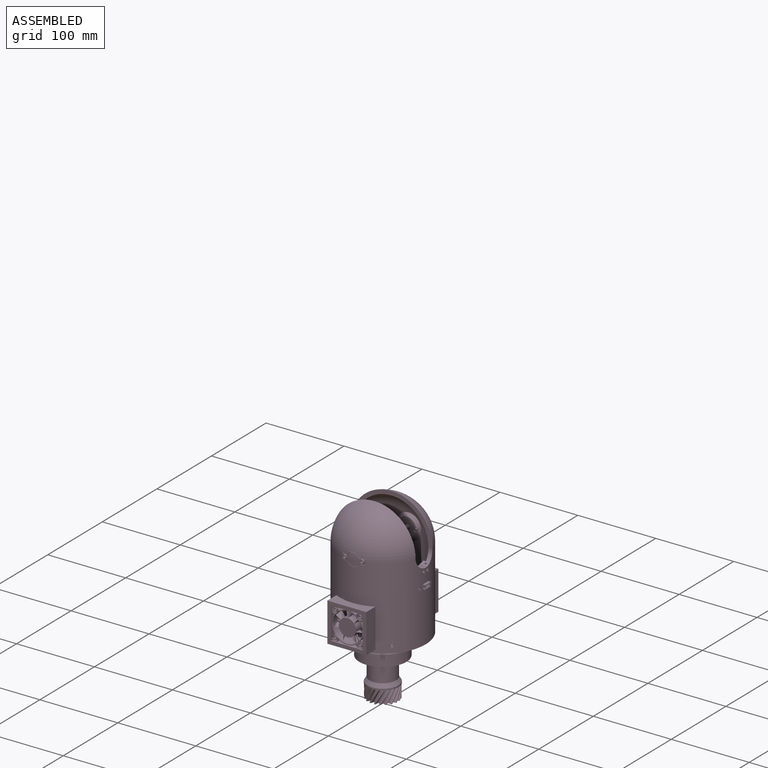
[diagram: assembled view]
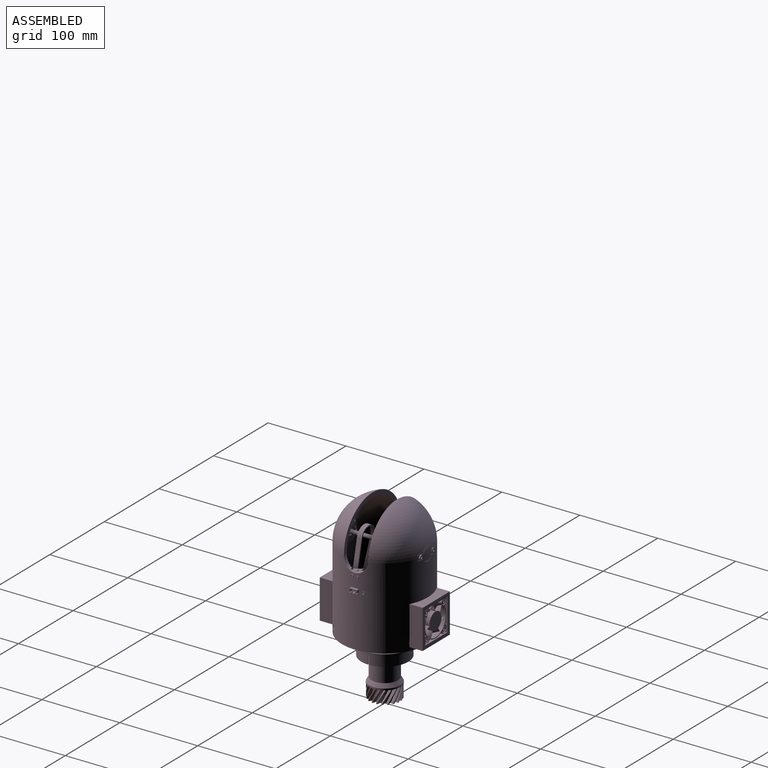
[diagram: assembled view, second angle]
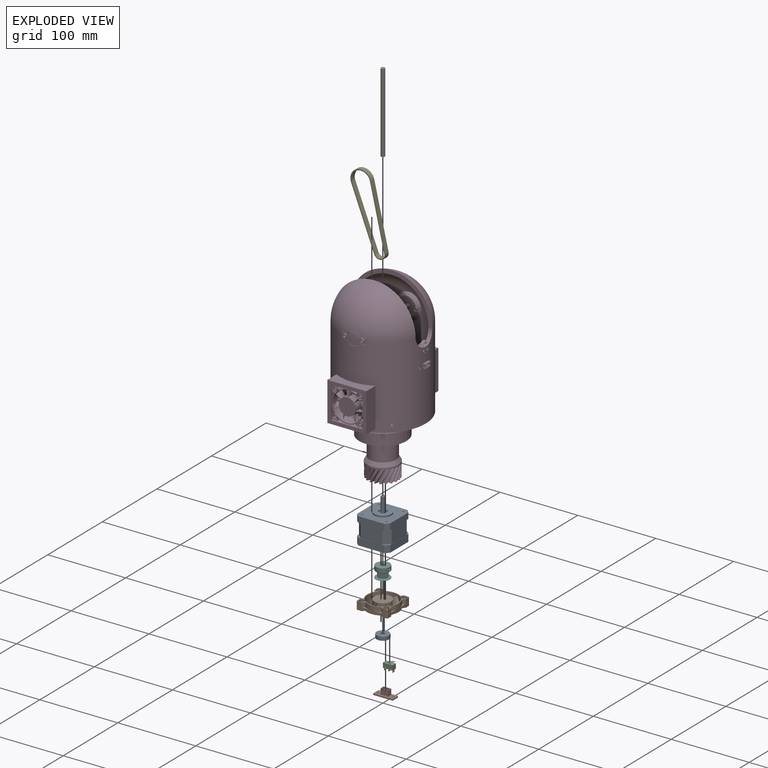
[diagram: exploded view]
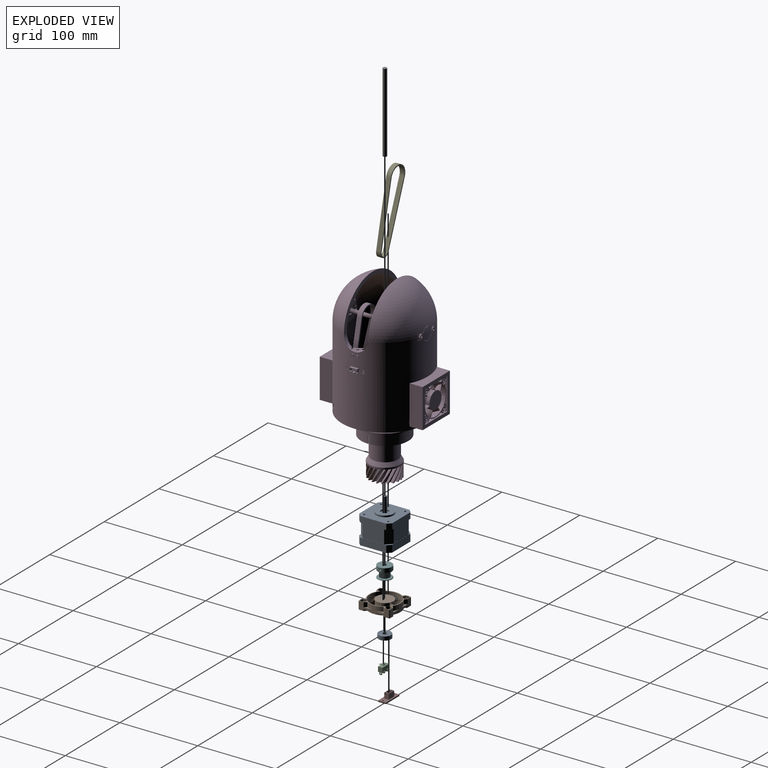
[diagram: exploded view, second angle]
FCSTD DOCUMENT  (FreeCAD 0.19R24276 (Git))
Label: AssemblyArt4
License: All rights reserved
LicenseURL: http://en.wikipedia.org/wiki/All_rights_reserved
objects: Part::FeaturePython×80, App::Link×25, PartDesign::CoordinateSystem×16, App::DocumentObjectGroup×9, App::Part×9, PartDesign::Line×8, Part::Feature×7, App::FeaturePython×1, Sketcher::SketchObject×1, PartDesign::Pad×1, Part::Cylinder×1
note: 115 computed B-rep shape members (.brp) not serialized (recipe doc carries the construction recipe, not evaluated geometry)
EXTERNAL_REF file=Art4TransmissionColumn.FCStd obj=LCS_Art4TransmissionColumn
EXTERNAL_REF file=Art4TransmissionColumn.FCStd obj=Body
EXTERNAL_REF file=Art4BodyBot.FCStd obj=LCS_Art4BodyBot
EXTERNAL_REF file=Art4TransmissionColumn.FCStd obj=LCS_Art4Body
EXTERNAL_REF file=Art4BodyBot.FCStd obj=Body
EXTERNAL_REF file=Art4Body.FCStd obj=LCS_Art4Body
EXTERNAL_REF file=Art4BodyBot.FCStd obj=LCS_Art4Body
EXTERNAL_REF file=Art4Body.FCStd obj=Body
EXTERNAL_REF file=Art4Body.FCStd obj=LCS_Fan2
EXTERNAL_REF file=Art4BodyFan.FCStd obj=LCS_Art4BodyFan
EXTERNAL_REF file=Art4BodyFan.FCStd obj=Body
EXTERNAL_REF file=Art4Body.FCStd obj=LCS_Fan1
EXTERNAL_REF file=Art4BodyBot.FCStd obj=LCS_Motor1A
EXTERNAL_REF file=Art56MotorHolderA.FCStd obj=LCS_Art56MotorHolderA
EXTERNAL_REF file=Art56MotorHolderA.FCStd obj=Body
EXTERNAL_REF file=Art4BodyBot.FCStd obj=LCS_Motor2A
EXTERNAL_REF file=Art56MotorHolderA.FCStd obj=LCS_Motor
EXTERNAL_REF file=Art56MotorHolderB.FCStd obj=LCS_AMotor
EXTERNAL_REF file=Art56MotorHolderB.FCStd obj=Body
EXTERNAL_REF file=Art4Body.FCStd obj=LCS_Bearing1
EXTERNAL_REF file=Art4Body.FCStd obj=LCS_Bearing2
EXTERNAL_REF file=Art4BearingFix.FCStd obj=LCS_Art4BearingFix
EXTERNAL_REF file=Art4Body.FCStd obj=LCS_BearingFix1
EXTERNAL_REF file=Art4BearingFix.FCStd obj=Body
EXTERNAL_REF file=Art4Body.FCStd obj=LCS_BearingFix2
EXTERNAL_REF file=Art4Body.FCStd obj=LCS_Connector
EXTERNAL_REF file=Art4Optodisk.FCStd obj=LCS_Art4Optodisk
EXTERNAL_REF file=Art4TransmissionColumn.FCStd obj=LCS_OptoRing
EXTERNAL_REF file=Art4Optodisk.FCStd obj=Body
EXTERNAL_REF file=Art4TransmissionColumn.FCStd obj=HoleAxis_8
EXTERNAL_REF file=Art4TransmissionColumn.FCStd obj=HoleAxis_7
EXTERNAL_REF file=Art4TransmissionColumn.FCStd obj=HoleAxis_6
EXTERNAL_REF file=Art4TransmissionColumn.FCStd obj=HoleAxis_5
EXTERNAL_REF file=Art4BodyBot.FCStd obj=HoleAxis_2
EXTERNAL_REF file=Art4BodyBot.FCStd obj=HoleAxis_3
EXTERNAL_REF file=Art4BodyBot.FCStd obj=HoleAxis_4
EXTERNAL_REF file=Art4BodyBot.FCStd obj=HoleAxis_1
EXTERNAL_REF file=Art4BodyBot.FCStd obj=HoleAxis_7
EXTERNAL_REF file=Art4BodyBot.FCStd obj=HoleAxis_5
EXTERNAL_REF file=Art4BodyBot.FCStd obj=HoleAxis_6
EXTERNAL_REF file=Art4BodyBot.FCStd obj=HoleAxis_8
EXTERNAL_REF file=Art4Body.FCStd obj=HoleAxis_2
EXTERNAL_REF file=Art4Body.FCStd obj=HoleAxis_4
EXTERNAL_REF file=Art4Body.FCStd obj=HoleAxis_3
EXTERNAL_REF file=Art4Body.FCStd obj=HoleAxis_1
EXTERNAL_REF file=Art4Body.FCStd obj=HoleAxis_6
EXTERNAL_REF file=Art4Body.FCStd obj=HoleAxis_5
EXTERNAL_REF file=Art4Body.FCStd obj=HoleAxis_7
EXTERNAL_REF file=Art4Body.FCStd obj=HoleAxis_8
EXTERNAL_REF file=Art4Body.FCStd obj=HoleAxis_19
EXTERNAL_REF file=Art4Body.FCStd obj=HoleAxis_20
EXTERNAL_REF file=Art4Body.FCStd obj=HoleAxis_18
EXTERNAL_REF file=Art4Body.FCStd obj=HoleAxis_17
EXTERNAL_REF file=Art56MotorHolderB.FCStd obj=HoleAxis_5
EXTERNAL_REF file=Art56MotorHolderA.FCStd obj=HoleAxis_5
EXTERNAL_REF file=Art4Body.FCStd obj=LCS_MicroSwitch
EXTERNAL_REF file=Art4TransmissionColumn.FCStd obj=HoleAxis_2
EXTERNAL_REF file=Art4TransmissionColumn.FCStd obj=HoleAxis_1
EXTERNAL_REF file=Art4TransmissionColumn.FCStd obj=HoleAxis_4
EXTERNAL_REF file=Art4TransmissionColumn.FCStd obj=HoleAxis_3
EXTERNAL_REF file=Art4Optodisk.FCStd obj=HoleAxis_3
EXTERNAL_REF file=Art4Optodisk.FCStd obj=HoleAxis_2
EXTERNAL_REF file=Art4Optodisk.FCStd obj=HoleAxis_1
EXTERNAL_REF file=Art4Optodisk.FCStd obj=HoleAxis_4
EXTERNAL_REF file=Art4BodyBot.FCStd obj=HoleAxis_11
EXTERNAL_REF file=Art4BodyBot.FCStd obj=HoleAxis_12
EXTERNAL_REF file=Art4BodyBot.FCStd obj=HoleAxis_10
EXTERNAL_REF file=Art4BodyBot.FCStd obj=HoleAxis_9
EXTERNAL_REF file=Art4Body.FCStd obj=HoleAxis_11
EXTERNAL_REF file=Art4Body.FCStd obj=HoleAxis_12
EXTERNAL_REF file=Art4Body.FCStd obj=HoleAxis_10
EXTERNAL_REF file=Art4Body.FCStd obj=HoleAxis_9
EXTERNAL_REF file=Art4Body.FCStd obj=HoleAxis_14
EXTERNAL_REF file=Art4Body.FCStd obj=HoleAxis_13
EXTERNAL_REF file=Art4Body.FCStd obj=HoleAxis_16
EXTERNAL_REF file=Art4Body.FCStd obj=HoleAxis_15
EXTERNAL_REF file=Art56MotorHolderB.FCStd obj=HoleAxis_3
EXTERNAL_REF file=Art56MotorHolderB.FCStd obj=HoleAxis_2
EXTERNAL_REF file=Art56MotorHolderB.FCStd obj=HoleAxis_1
EXTERNAL_REF file=Art56MotorHolderB.FCStd obj=HoleAxis_4
EXTERNAL_REF file=Art56MotorHolderA.FCStd obj=HoleAxis_2
EXTERNAL_REF file=Art56MotorHolderA.FCStd obj=HoleAxis_1
EXTERNAL_REF file=Art56MotorHolderA.FCStd obj=HoleAxis_3
EXTERNAL_REF file=Art56MotorHolderA.FCStd obj=HoleAxis_4
EXTERNAL_REF file=Art4BearingFix.FCStd obj=HoleAxis_2
EXTERNAL_REF file=Art4BearingFix.FCStd obj=HoleAxis_1

FEATURE [PartDesign::CoordinateSystem] LCS_Origin
  AttacherType = Attacher::AttachEngine3D
  MapMode = 2
  Support = -> [X_Axis]
FEATURE [App::DocumentObjectGroup] Constraints
FEATURE [App::FeaturePython] Variables  # WARN: FeaturePython — macro-defined, semantics opaque (R4)
FEATURE [App::Link] Art4TransmissionColumn_Art4TransmissionColumn
  AssemblyType = Asm4EE
  AttachedBy = #LCS_Art4TransmissionColumn
  AttachedTo = Parent Assembly#LCS_Origin
  AttachmentOffset = pos=(0,0,0) rot=(0,0,1;0.785398rad)
  ElementCount = 0
  LinkPlacement = pos=(0,0,-69) rot=(0,0,1;0.785398rad)
  LinkTransform = false
  Placement = pos=(0,0,-69) rot=(0,0,1;0.785398rad)
  Scale = 1
  ScaleVector = (1,1,1)
  ShowElement = true
  expr: Placement = LCS_Origin.Placement * AttachmentOffset * Art4TransmissionColumn#LCS_Art4TransmissionColumn.Placement ^ -1
FEATURE [App::Link] Art4BodyBot_Art4BodyBot
  AssemblyType = Asm4EE
  AttachedBy = #LCS_Art4BodyBot
  AttachedTo = Art4TransmissionColumn_Art4TransmissionColumn#LCS_Art4Body
  AttachmentOffset = pos=(0,0,0) rot=(0,0,1;3.92699rad)
  ElementCount = 0
  LinkPlacement = pos=(-4e-15,1.24e-14,7) rot=(0,0,1;4.71239rad)
  LinkTransform = false
  Placement = pos=(-4e-15,1.24e-14,7) rot=(0,0,1;4.71239rad)
  Scale = 1
  ScaleVector = (1,1,1)
  ShowElement = true
  expr: Placement = Art4TransmissionColumn_Art4TransmissionColumn.Placement * Art4TransmissionColumn#LCS_Art4Body.Placement * AttachmentOffset * Art4BodyBot#LCS_Art4BodyBot.Placement ^ -1
FEATURE [App::Link] Art4Body_Art4Body
  AssemblyType = Asm4EE
  AttachedBy = #LCS_Art4Body
  AttachedTo = Art4BodyBot_Art4BodyBot#LCS_Art4Body
  ElementCount = 0
  LinkPlacement = pos=(3.9e-15,1.18e-14,11.5) rot=(0,0,1;4.71239rad)
  LinkTransform = false
  Placement = pos=(3.9e-15,1.18e-14,11.5) rot=(0,0,1;4.71239rad)
  Scale = 1
  ScaleVector = (1,1,1)
  ShowElement = true
  expr: Placement = Art4BodyBot_Art4BodyBot.Placement * Art4BodyBot#LCS_Art4Body.Placement * AttachmentOffset * Art4Body#LCS_Art4Body.Placement ^ -1
FEATURE [App::Link] Art4BodyFan_Art4BodyFan
  AssemblyType = Asm4EE
  AttachedBy = #LCS_Art4BodyFan
  AttachedTo = Art4Body_Art4Body#LCS_Fan2
  AttachmentOffset = pos=(0,0,4) rot=(0,1,0;3.14159rad)
  ElementCount = 0
  LinkPlacement = pos=(1.76e-14,-66,11.5) rot=(0,0,-1;4.71239rad)
  LinkTransform = false
  Placement = pos=(1.76e-14,-66,11.5) rot=(0,0,-1;4.71239rad)
  Scale = 1
  ScaleVector = (1,1,1)
  ShowElement = true
  expr: Placement = Art4Body_Art4Body.Placement * Art4Body#LCS_Fan2.Placement * AttachmentOffset * Art4BodyFan#LCS_Art4BodyFan.Placement ^ -1
FEATURE [App::Link] Art4BodyFan_Art4BodyFan001
  AssemblyType = Asm4EE
  AttachedBy = #LCS_Art4BodyFan
  AttachedTo = Art4Body_Art4Body#LCS_Fan1
  AttachmentOffset = pos=(0,0,-4) rot=(0,0,1;0rad)
  ElementCount = 0
  LinkPlacement = pos=(9.7e-15,66,11.5) rot=(0,0,1;4.71239rad)
  LinkTransform = false
  Placement = pos=(9.7e-15,66,11.5) rot=(0,0,1;4.71239rad)
  Scale = 1
  ScaleVector = (1,1,1)
  ShowElement = true
  expr: Placement = Art4Body_Art4Body.Placement * Art4Body#LCS_Fan1.Placement * AttachmentOffset * Art4BodyFan#LCS_Art4BodyFan.Placement ^ -1
FEATURE [App::Link] Art56MotorHolderA_Art56MotorHolderA
  AssemblyType = Asm4EE
  AttachedBy = #LCS_Art56MotorHolderA
  AttachedTo = Art4BodyBot_Art4BodyBot#LCS_Motor1A
  AttachmentOffset = pos=(0,0,11.1) rot=(0,0,1;1.5708rad)
  ElementCount = 0
  LinkPlacement = pos=(24,-10.3,33.6) rot=(0,-0.707107,0.707107;3.14159rad)
  LinkTransform = false
  Placement = pos=(24,-10.3,33.6) rot=(0,-0.707107,0.707107;3.14159rad)
  Scale = 1
  ScaleVector = (1,1,1)
  ShowElement = true
  expr: Placement = Art4BodyBot_Art4BodyBot.Placement * Art4BodyBot#LCS_Motor1A.Placement * AttachmentOffset * Art56MotorHolderA#LCS_Art56MotorHolderA.Placement ^ -1
FEATURE [App::Link] Art56MotorHolderA_Art56MotorHolderA001
  AssemblyType = Asm4EE
  AttachedBy = #LCS_Art56MotorHolderA
  AttachedTo = Art4BodyBot_Art4BodyBot#LCS_Motor2A
  AttachmentOffset = pos=(0,0,11.1) rot=(0,0,1;4.71239rad)
  ElementCount = 0
  LinkPlacement = pos=(-24,10.3,33.6) rot=(1,0,0;4.71239rad)
  LinkTransform = false
  Placement = pos=(-24,10.3,33.6) rot=(1,0,0;4.71239rad)
  Scale = 1
  ScaleVector = (1,1,1)
  ShowElement = true
  expr: Placement = Art4BodyBot_Art4BodyBot.Placement * Art4BodyBot#LCS_Motor2A.Placement * AttachmentOffset * Art56MotorHolderA#LCS_Art56MotorHolderA.Placement ^ -1
FEATURE [Part::Feature] Chamfer_solid  label="NEMA-17_Stepper_Motor_34mm"
FEATURE [PartDesign::CoordinateSystem] LCS_Front
  AttacherType = Attacher::AttachEngine3D
  MapMode = 45
  Placement = pos=(7.4e-15,0,34) rot=(0,0,1;0rad)
  Support = -> [Chamfer_solid]
FEATURE [PartDesign::CoordinateSystem] LCS_Back
  AttacherType = Attacher::AttachEngine3D
  MapMode = 45
  Placement = pos=(7.5e-15,0,0) rot=(0,0,1;0rad)
  Support = -> [Chamfer_solid]
FEATURE [PartDesign::CoordinateSystem] LCS_Shaft
  AttacherType = Attacher::AttachEngine3D
  MapMode = 11
  Placement = pos=(0,0,54) rot=(0,0,-1;0.927295rad)
  Support = -> [Chamfer_solid]
FEATURE [App::Part] Stepper_Nema17x34
  Group = -> [Chamfer_solid,LCS_Front,LCS_Back,LCS_Shaft]
  Origin = -> Origin011
FEATURE [Part::Feature] Part__Feature001  label="fan-40x40mm"
FEATURE [PartDesign::Line] HoleAxis_8
  AttacherType = Attacher::AttachEngineLine
  Length = 6.05899
  MapMode = 19
  Placement = pos=(-15.9948,15.9948,6.76) rot=(0,0,1;0rad)
  ResizeMode = 1
  Support = -> [Part__Feature001]
FEATURE [PartDesign::Line] HoleAxis_6
  AttacherType = Attacher::AttachEngineLine
  Length = 6.05899
  MapMode = 19
  Placement = pos=(15.9948,-15.9948,6.76) rot=(0,0,1;3.14159rad)
  ResizeMode = 1
  Support = -> [Part__Feature001]
FEATURE [PartDesign::Line] HoleAxis_7
  AttacherType = Attacher::AttachEngineLine
  Length = 6.05899
  MapMode = 19
  Placement = pos=(-15.9948,-15.9948,6.76) rot=(0,0,1;1.5708rad)
  ResizeMode = 1
  Support = -> [Part__Feature001]
FEATURE [PartDesign::Line] HoleAxis_5
  AttacherType = Attacher::AttachEngineLine
  Length = 6.05899
  MapMode = 19
  Placement = pos=(15.9948,15.9948,6.76) rot=(0,0,1;4.71239rad)
  ResizeMode = 1
  Support = -> [Part__Feature001]
FEATURE [PartDesign::CoordinateSystem] LCS_0001
  AttacherType = Attacher::AttachEngine3D
  MapMode = 2
  Support = -> [X_Axis002]
FEATURE [PartDesign::CoordinateSystem] LCS_Fan001
  AttacherType = Attacher::AttachEngine3D
  AttachmentOffset = pos=(0,0,-2.21) rot=(0,0,1;0rad)
  MapMode = 45
  Placement = pos=(-5e-16,5e-16,-4e-16) rot=(0,0,1;0rad)
  Support = -> [Part__Feature001]
FEATURE [App::Part] Fan_40x40
  Group = -> [LCS_0001,Part__Feature001,LCS_Fan001,HoleAxis_5,HoleAxis_6,HoleAxis_7,HoleAxis_8]
  Origin = -> Origin002
FEATURE [App::DocumentObjectGroup] Group001  label="Fans"
  Group = -> [Fan_40x40]
FEATURE [Part::Feature] Compound001  label="Bearing 625ZZ"
FEATURE [PartDesign::CoordinateSystem] LCS_0
  AttacherType = Attacher::AttachEngine3D
  MapMode = 2
  Support = -> [X_Axis003]
FEATURE [App::Part] Bearing_625ZZ
  Group = -> [LCS_0,Compound001]
  Origin = -> Origin003
FEATURE [App::DocumentObjectGroup] Group002  label="Bearing"
  Group = -> [Bearing_625ZZ]
FEATURE [App::Link] Stepper_Nema17x34001
  AssemblyType = Asm4EE
  AttachedBy = #LCS_Front
  AttachedTo = Art56MotorHolderA_Art56MotorHolderA001#LCS_Motor
  ElementCount = 0
  LinkPlacement = pos=(-24,-23.7,33.6) rot=(1,0,0;4.71239rad)
  LinkTransform = false
  Placement = pos=(-24,-23.7,33.6) rot=(1,0,0;4.71239rad)
  Scale = 1
  ScaleVector = (1,1,1)
  ShowElement = true
  expr: Placement = Art56MotorHolderA_Art56MotorHolderA001.Placement * Art56MotorHolderA#LCS_Motor.Placement * AttachmentOffset * LCS_Front.Placement ^ -1
FEATURE [App::Link] Stepper_Nema17x34002
  AssemblyType = Asm4EE
  AttachedBy = #LCS_Front
  AttachedTo = Art56MotorHolderA_Art56MotorHolderA#LCS_Motor
  ElementCount = 0
  LinkPlacement = pos=(24,23.7,33.6) rot=(0,-0.707107,0.707107;3.14159rad)
  LinkTransform = false
  Placement = pos=(24,23.7,33.6) rot=(0,-0.707107,0.707107;3.14159rad)
  Scale = 1
  ScaleVector = (1,1,1)
  ShowElement = true
  expr: Placement = Art56MotorHolderA_Art56MotorHolderA.Placement * Art56MotorHolderA#LCS_Motor.Placement * AttachmentOffset * LCS_Front.Placement ^ -1
FEATURE [App::Link] Art56MotorHolderB_Art56MotorHolderB
  AssemblyType = Asm4EE
  AttachedBy = #LCS_AMotor
  AttachedTo = Stepper_Nema17x34002#LCS_Back
  AttachmentOffset = pos=(0,0,0) rot=(1,0,0;3.14159rad)
  ElementCount = 0
  LinkPlacement = pos=(24,23.7,33.6) rot=(0,0.707107,0.707107;3.14159rad)
  LinkTransform = false
  Placement = pos=(24,23.7,33.6) rot=(0,0.707107,0.707107;3.14159rad)
  Scale = 1
  ScaleVector = (1,1,1)
  ShowElement = true
  expr: Placement = Stepper_Nema17x34002.Placement * LCS_Back.Placement * AttachmentOffset * Art56MotorHolderB#LCS_AMotor.Placement ^ -1
FEATURE [App::Link] Art56MotorHolderB_Art56MotorHolderB001
  AssemblyType = Asm4EE
  AttachedBy = #LCS_AMotor
  AttachedTo = Stepper_Nema17x34001#LCS_Back
  AttachmentOffset = pos=(0,0,0) rot=(1,0,0;3.14159rad)
  ElementCount = 0
  LinkPlacement = pos=(-24,-23.7,33.6) rot=(-1,0,0;4.71239rad)
  LinkTransform = false
  Placement = pos=(-24,-23.7,33.6) rot=(-1,0,0;4.71239rad)
  Scale = 1
  ScaleVector = (1,1,1)
  ShowElement = true
  expr: Placement = Stepper_Nema17x34001.Placement * LCS_Back.Placement * AttachmentOffset * Art56MotorHolderB#LCS_AMotor.Placement ^ -1
FEATURE [PartDesign::CoordinateSystem] LCS_0002
  AttacherType = Attacher::AttachEngine3D
  MapMode = 2
  Support = -> [X_Axis013]
FEATURE [Part::Feature] Cut002001  label="GT2x20Pulley"
FEATURE [Part::Feature] Pocket001  label="M3GrubScrew"
  Placement = pos=(-1.40523,3.35058e-06,9.4) rot=(0,0,1;0rad)
FEATURE [App::Part] Pulley_GT2x20
  Group = -> [LCS_0002,Cut002001,Pocket001]
  Origin = -> Origin013
FEATURE [App::DocumentObjectGroup] Group003  label="Pulleys"
  Group = -> [Pulley_GT2x20]
FEATURE [App::Link] Pulley_GT2x20001
  AssemblyType = Asm4EE
  AttachedBy = #LCS_0002
  AttachedTo = Stepper_Nema17x34002#LCS_Shaft
  AttachmentOffset = pos=(0,0,-2.4) rot=(0.446198,-0.894934,0;3.14159rad)
  ElementCount = 0
  LinkPlacement = pos=(24,-27.9,33.6) rot=(0.999999,-0.001135,-0.001135;4.71239rad)
  LinkTransform = false
  Placement = pos=(24,-27.9,33.6) rot=(0.999999,-0.001135,-0.001135;4.71239rad)
  Scale = 1
  ScaleVector = (1,1,1)
  ShowElement = true
  expr: Placement = Stepper_Nema17x34002.Placement * LCS_Shaft.Placement * AttachmentOffset * LCS_0002.Placement ^ -1
FEATURE [App::Link] Pulley_GT2x20002
  AssemblyType = Asm4EE
  AttachedBy = #LCS_0002
  AttachedTo = Stepper_Nema17x34001#LCS_Shaft
  AttachmentOffset = pos=(0,0,-2.4) rot=(0.430511,-0.902585,0;3.14159rad)
  ElementCount = 0
  LinkPlacement = pos=(-24,27.9,33.6) rot=(0.013145,0.707046,-0.707046;3.11531rad)
  LinkTransform = false
  Placement = pos=(-24,27.9,33.6) rot=(0.013145,0.707046,-0.707046;3.11531rad)
  Scale = 1
  ScaleVector = (1,1,1)
  ShowElement = true
  expr: Placement = Stepper_Nema17x34001.Placement * LCS_Shaft.Placement * AttachmentOffset * LCS_0002.Placement ^ -1
FEATURE [App::Link] Bearing_625ZZ001
  AssemblyType = Asm4EE
  AttachedBy = #LCS_0
  AttachedTo = Art4Body_Art4Body#LCS_Bearing1
  AttachmentOffset = pos=(0,0,0) rot=(0,-1,0;3.14159rad)
  ElementCount = 0
  LinkPlacement = pos=(1.385e-13,46,111.5) rot=(-1,0,0;1.5708rad)
  LinkTransform = false
  Placement = pos=(1.385e-13,46,111.5) rot=(-1,0,0;1.5708rad)
  Scale = 1
  ScaleVector = (1,1,1)
  ShowElement = true
  expr: Placement = Art4Body_Art4Body.Placement * Art4Body#LCS_Bearing1.Placement * AttachmentOffset * LCS_0.Placement ^ -1
FEATURE [App::Link] Bearing_625ZZ002
  AssemblyType = Asm4EE
  AttachedBy = #LCS_0
  AttachedTo = Art4Body_Art4Body#LCS_Bearing2
  AttachmentOffset = pos=(0,0,0) rot=(1,0,0;3.14159rad)
  ElementCount = 0
  LinkPlacement = pos=(1.403e-13,-46,111.5) rot=(-1,0,0;4.71239rad)
  LinkTransform = false
  Placement = pos=(1.403e-13,-46,111.5) rot=(-1,0,0;4.71239rad)
  Scale = 1
  ScaleVector = (1,1,1)
  ShowElement = true
  expr: Placement = Art4Body_Art4Body.Placement * Art4Body#LCS_Bearing2.Placement * AttachmentOffset * LCS_0.Placement ^ -1
FEATURE [App::Link] Fan_40x40001
  AssemblyType = Asm4EE
  AttachedBy = #LCS_Fan001
  AttachedTo = Art4BodyFan_Art4BodyFan#LCS_Art4BodyFan
  AttachmentOffset = pos=(0,0,0) rot=(1,0,0;3.14159rad)
  ElementCount = 0
  LinkPlacement = pos=(4.8e-14,-55,36.5) rot=(0,-0.707107,0.707107;3.14159rad)
  LinkTransform = false
  Placement = pos=(4.8e-14,-55,36.5) rot=(0,-0.707107,0.707107;3.14159rad)
  Scale = 1
  ScaleVector = (1,1,1)
  ShowElement = true
  expr: Placement = Art4BodyFan_Art4BodyFan.Placement * Art4BodyFan#LCS_Art4BodyFan.Placement * AttachmentOffset * LCS_Fan001.Placement ^ -1
FEATURE [App::Link] Fan_40x40002
  AssemblyType = Asm4EE
  AttachedBy = #LCS_Fan001
  AttachedTo = Art4BodyFan_Art4BodyFan001#LCS_Art4BodyFan
  AttachmentOffset = pos=(0,0,0) rot=(1,0,0;3.14159rad)
  ElementCount = 0
  LinkPlacement = pos=(1.73e-14,55,36.5) rot=(-1,0,0;1.5708rad)
  LinkTransform = false
  Placement = pos=(1.73e-14,55,36.5) rot=(-1,0,0;1.5708rad)
  Scale = 1
  ScaleVector = (1,1,1)
  ShowElement = true
  expr: Placement = Art4BodyFan_Art4BodyFan001.Placement * Art4BodyFan#LCS_Art4BodyFan.Placement * AttachmentOffset * LCS_Fan001.Placement ^ -1
FEATURE [App::Link] Art4BearingFix_Art4BearingFix
  AssemblyType = Asm4EE
  AttachedBy = #LCS_Art4BearingFix
  AttachedTo = Art4Body_Art4Body#LCS_BearingFix1
  AttachmentOffset = pos=(0,0,0) rot=(1,0,0;3.14159rad)
  ElementCount = 0
  LinkPlacement = pos=(1.461e-13,51,111.5) rot=(0,-0.707107,-0.707107;3.14159rad)
  LinkTransform = false
  Placement = pos=(1.461e-13,51,111.5) rot=(0,-0.707107,-0.707107;3.14159rad)
  Scale = 1
  ScaleVector = (1,1,1)
  ShowElement = true
  expr: Placement = Art4Body_Art4Body.Placement * Art4Body#LCS_BearingFix1.Placement * AttachmentOffset * Art4BearingFix#LCS_Art4BearingFix.Placement ^ -1
FEATURE [App::Link] Art4BearingFix_Art4BearingFix001
  AssemblyType = Asm4EE
  AttachedBy = #LCS_Art4BearingFix
  AttachedTo = Art4Body_Art4Body#LCS_BearingFix2
  ElementCount = 0
  LinkPlacement = pos=(1.502e-13,-51,111.5) rot=(-1,0,0;4.71239rad)
  LinkTransform = false
  Placement = pos=(1.502e-13,-51,111.5) rot=(-1,0,0;4.71239rad)
  Scale = 1
  ScaleVector = (1,1,1)
  ShowElement = true
  expr: Placement = Art4Body_Art4Body.Placement * Art4Body#LCS_BearingFix2.Placement * AttachmentOffset * Art4BearingFix#LCS_Art4BearingFix.Placement ^ -1
FEATURE [Part::Feature] Compound005  label="ServoConnector"
FEATURE [PartDesign::CoordinateSystem] LCS_0003
  AttacherType = Attacher::AttachEngine3D
  MapMode = 2
  Support = -> [X_Axis014]
FEATURE [PartDesign::CoordinateSystem] LCS_ServoConnectorPCB
  AttacherType = Attacher::AttachEngine3D
  MapMode = 45
  Placement = pos=(6.2e-15,5.08,1.75) rot=(0,0,1;1.5708rad)
  Support = -> [Compound005]
FEATURE [PartDesign::Line] HoleAxis_1
  AttacherType = Attacher::AttachEngineLine
  Length = 2.81813
  MapMode = 19
  Placement = pos=(-10.16,5.08,0) rot=(0,0,1;0rad)
  ResizeMode = 1
  Support = -> [Compound005]
FEATURE [PartDesign::Line] HoleAxis_2
  AttacherType = Attacher::AttachEngineLine
  Length = 2.81813
  MapMode = 19
  Placement = pos=(10.16,5.08,0) rot=(0,0,1;0rad)
  ResizeMode = 1
  Support = -> [Compound005]
FEATURE [App::Part] ServoConnector  label="ServoConnectorPCB"
  Group = -> [LCS_0003,Compound005,LCS_ServoConnectorPCB,HoleAxis_1,HoleAxis_2]
  Origin = -> Origin014
FEATURE [Part::Feature] Compound004  label="Micro-endstop"
FEATURE [PartDesign::CoordinateSystem] LCS_0004
  AttacherType = Attacher::AttachEngine3D
  MapMode = 2
  Support = -> [X_Axis015]
FEATURE [PartDesign::CoordinateSystem] LCS_MicroEndstop_1
  AttacherType = Attacher::AttachEngine3D
  MapMode = 45
  Placement = pos=(6.3,0,1.2) rot=(0.57735,0.57735,0.57735;4.18879rad)
  Support = -> [Compound004]
FEATURE [PartDesign::Line] HoleAxis_3
  AttacherType = Attacher::AttachEngineLine
  Length = 2.81813
  MapMode = 19
  Placement = pos=(3.05,5.8,1.2) rot=(1,0,0;1.5708rad)
  ResizeMode = 1
  Support = -> [Compound004]
FEATURE [PartDesign::Line] HoleAxis_4
  AttacherType = Attacher::AttachEngineLine
  Length = 2.81813
  MapMode = 19
  Placement = pos=(9.55,5.8,1.2) rot=(1,0,0;1.5708rad)
  ResizeMode = 1
  Support = -> [Compound004]
FEATURE [App::Part] MicroEndstot  label="MicroEndstop"
  Group = -> [LCS_0004,Compound004,LCS_MicroEndstop_1,HoleAxis_3,HoleAxis_4]
  Origin = -> Origin015
FEATURE [App::DocumentObjectGroup] Group  label="Electronics"
  Group = -> [Stepper_Nema17x34,ServoConnector,MicroEndstot]
FEATURE [App::Link] ServoConnectorPCB  label="ServoConnectorPCB001"
  AssemblyType = Asm4EE
  AttachedBy = #LCS_ServoConnectorPCB
  AttachedTo = Art4Body_Art4Body#LCS_Connector
  ElementCount = 0
  LinkPlacement = pos=(49.25,-2.16e-14,69.795) rot=(-0.57735,-0.57735,-0.57735;4.18879rad)
  LinkTransform = false
  Placement = pos=(49.25,-2.16e-14,69.795) rot=(-0.57735,-0.57735,-0.57735;4.18879rad)
  Scale = 1
  ScaleVector = (1,1,1)
  ShowElement = true
  expr: Placement = Art4Body_Art4Body.Placement * Art4Body#LCS_Connector.Placement * AttachmentOffset * LCS_ServoConnectorPCB.Placement ^ -1
FEATURE [Sketcher::SketchObject] Sketch075
  AttacherType = Attacher::AttachEnginePlane
  FullyConstrained = true
  MapMode = 5
  Placement = pos=(0,0,0) rot=(1,0,0;1.5708rad)
  sketch-geometry (8):
    g0: ArcOfCircle CenterX=0 CenterY=0 CenterZ=0 NormalX=0 NormalY=0 NormalZ=1 AngleXU=0 Radius=6 StartAngle=3.51637 EndAngle=6.50976
    g1: ArcOfCircle CenterX=-24 CenterY=77.4 CenterZ=0 NormalX=0 NormalY=0 NormalZ=1 AngleXU=0 Radius=12 StartAngle=0.226567 EndAngle=3.51638
    g2: LineSegment StartX=-35.167 StartY=73.0071 StartZ=0 EndX=-5.58353 EndY=-2.19642 EndZ=0
    g3: LineSegment StartX=-12.3067 StartY=80.0956 StartZ=0 EndX=5.84665 EndY=1.34782 EndZ=0
    g4: ArcOfCircle CenterX=0 CenterY=0 CenterZ=0 NormalX=0 NormalY=0 NormalZ=1 AngleXU=0 Radius=7.5 StartAngle=3.51638 EndAngle=6.50976
    g5: ArcOfCircle CenterX=-24 CenterY=77.4 CenterZ=0 NormalX=0 NormalY=0 NormalZ=1 AngleXU=0 Radius=13.5 StartAngle=0.226568 EndAngle=3.51638
    g6: LineSegment StartX=-36.5629 StartY=72.458 StartZ=0 EndX=-6.9794 EndY=-2.74555 EndZ=0
    g7: LineSegment StartX=7.30832 StartY=1.68477 StartZ=0 EndX=-10.845 EndY=80.4326 EndZ=0
  constraints (24):
    c: Coincident(g2,g1)
    c: Coincident(g2,g0)
    c: Coincident(g3,g1)
    c: Coincident(g3,g0)
    c: Tangent(g3,g0)
    c: Tangent(g2,g0)
    c: Tangent(g2,g1)
    c: Tangent(g3,g1)
    c: DistanceX(g1,g0) = 24
    c: DistanceY(g0,g1) = 77.4
    c: Radius(g1) = 12
    c: Radius(g0) = 6
    c: Coincident(g4,g0)
    c: Coincident(g5,g1)
    c: Radius(g5) = 13.5
    c: Radius(g4) = 7.5
    c: Coincident(g7,g4)
    c: Coincident(g7,g5)
    c: Tangent(g4,g7)
    c: Tangent(g7,g5)
    c: Coincident(g6,g5)
    c: Tangent(g5,g6)
    c: Tangent(g6,g4) = -1.5708
    c: Coincident(g0,g-1)
FEATURE [PartDesign::Pad] Pad046  label="GT2-208mm"
  AllowMultiFace = false
  Direction = (1,1,1)
  Length = 6
  Length2 = 100
  Midplane = false
  Offset = 0
  Placement = pos=(0,0,0) rot=(1,0,0;1.5708rad)
  Profile = -> Sketch075
  Refine = true
  Reversed = false
  Type = 0
  UseCustomVector = false
FEATURE [PartDesign::CoordinateSystem] LCS_Belt_GT2_208mm  label="LCS_Belt_GT2-208mm"
  AttacherType = Attacher::AttachEngine3D
  MapMode = 0
FEATURE [App::Part] Part  label="Belt_GT2-208mm"
  Group = -> [Sketch075,Pad046,LCS_Belt_GT2_208mm]
  Origin = -> Origin016
FEATURE [App::DocumentObjectGroup] Group004  label="Belts"
  Group = -> [Part]
FEATURE [App::Link] Belt_GT2_208mm  label="Belt_GT2-208mm001"
  AssemblyType = Asm4EE
  AttachedBy = #LCS_Belt_GT2_208mm
  AttachedTo = Pulley_GT2x20001#LCS_0002
  AttachmentOffset = pos=(0,0,7.4) rot=(1,0,0;1.5708rad)
  ElementCount = 0
  LinkPlacement = pos=(24,-20.5,33.6) rot=(0,-1,0;6.28092rad)
  LinkTransform = false
  Placement = pos=(24,-20.5,33.6) rot=(0,-1,0;6.28092rad)
  Scale = 1
  ScaleVector = (1,1,1)
  ShowElement = true
  expr: Placement = Pulley_GT2x20001.Placement * LCS_0002.Placement * AttachmentOffset * LCS_Belt_GT2_208mm.Placement ^ -1
FEATURE [App::Link] Belt_GT2_208mm001  label="Belt_GT2-208mm002"
  AssemblyType = Asm4EE
  AttachedBy = #LCS_Belt_GT2_208mm
  AttachedTo = Pulley_GT2x20002#LCS_0002
  AttachmentOffset = pos=(0,0,7.4) rot=(1,0,0;1.5708rad)
  ElementCount = 0
  LinkPlacement = pos=(-24,20.5,33.6) rot=(0.018588,0,-0.999827;3.14159rad)
  LinkTransform = false
  Placement = pos=(-24,20.5,33.6) rot=(0.018588,0,-0.999827;3.14159rad)
  Scale = 1
  ScaleVector = (1,1,1)
  ShowElement = true
  expr: Placement = Pulley_GT2x20002.Placement * LCS_0002.Placement * AttachmentOffset * LCS_Belt_GT2_208mm.Placement ^ -1
FEATURE [Part::Cylinder] Cylinder1060  label="Cylinder"
  Angle = 360
  AttacherType = Attacher::AttachEngine3D
  Height = 102
  MapMode = 0
  Radius = 2.5
FEATURE [PartDesign::CoordinateSystem] LCS_0005
  AttacherType = Attacher::AttachEngine3D
  MapMode = 2
  Support = -> [X_Axis017]
FEATURE [App::Part] Rod_5x102mm  label="Shaft_5x102mm"
  Group = -> [LCS_0005,Cylinder1060]
  Origin = -> Origin017
FEATURE [App::DocumentObjectGroup] Group005  label="Shafts"
  Group = -> [Rod_5x102mm]
FEATURE [App::DocumentObjectGroup] Parts
  Group = -> [Group,Group001,Group002,Group003,Group004,Group005]
FEATURE [App::Link] Shaft_5x102mm  label="Shaft_5x102mm001"
  AssemblyType = Asm4EE
  AttachedBy = #LCS_0005
  AttachedTo = Bearing_625ZZ001#LCS_0
  AttachmentOffset = pos=(0,0,5) rot=(1,0,0;3.14159rad)
  ElementCount = 0
  LinkPlacement = pos=(1.399e-13,51,111.5) rot=(1,0,0;1.5708rad)
  LinkTransform = false
  Placement = pos=(1.399e-13,51,111.5) rot=(1,0,0;1.5708rad)
  Scale = 1
  ScaleVector = (1,1,1)
  ShowElement = true
  expr: Placement = Bearing_625ZZ001.Placement * LCS_0.Placement * AttachmentOffset * LCS_0005.Placement ^ -1
FEATURE [App::Link] Art4Optodisk_Art4Optodisk
  AssemblyType = Asm4EE
  AttachedBy = #LCS_Art4Optodisk
  AttachedTo = Art4TransmissionColumn_Art4TransmissionColumn#LCS_OptoRing
  AttachmentOffset = pos=(0,0,0) rot=(-0.92388,0.382683,0;3.14159rad)
  ElementCount = 0
  LinkPlacement = pos=(4.9e-15,1.51e-14,-5) rot=(-1,0,0;3.14159rad)
  LinkTransform = false
  Placement = pos=(4.9e-15,1.51e-14,-5) rot=(-1,0,0;3.14159rad)
  Scale = 1
  ScaleVector = (1,1,1)
  ShowElement = true
  expr: Placement = Art4TransmissionColumn_Art4TransmissionColumn.Placement * Art4TransmissionColumn#LCS_OptoRing.Placement * AttachmentOffset * Art4Optodisk#LCS_Art4Optodisk.Placement ^ -1
FEATURE [Part::FeaturePython] Nut  label="M2-Nut"  # WARN: FeaturePython — macro-defined, semantics opaque (R4)
  AssemblyType = Asm4EE
  AttachedBy = Origin
  AttachedTo = MicroEndstop#HoleAxis_4
  AttachmentOffset = pos=(0,0,0) rot=(1,0,0;3.14159rad)
  Placement = pos=(46.45,3.25,91.4) rot=(0.57735,0.57735,-0.57735;4.18879rad)
  diameter = 2
  invert = false
  matchOuter = false
  offset = 0
  thread = false
  type = 7
  expr: Placement = MicroEndstop.Placement * HoleAxis_4.Placement * AttachmentOffset
FEATURE [Part::FeaturePython] Nut001  label="M3-Nut005"  # WARN: FeaturePython — macro-defined, semantics opaque (R4)
  AssemblyType = Asm4EE
  AttachedBy = Origin
  AttachedTo = Art4TransmissionColumn_Art4TransmissionColumn#HoleAxis_8
  AttachmentOffset = pos=(0,0,0) rot=(0,0,1;1.5708rad)
  Placement = pos=(-1.4e-14,24,0) rot=(0,0,1;2.35619rad)
  diameter = 4
  invert = false
  matchOuter = false
  offset = 0
  thread = false
  type = 7
  expr: Placement = Art4TransmissionColumn_Art4TransmissionColumn.Placement * Art4TransmissionColumn#HoleAxis_8.Placement * AttachmentOffset
FEATURE [Part::FeaturePython] Nut002  label="M3-Nut006"  # WARN: FeaturePython — macro-defined, semantics opaque (R4)
  AssemblyType = Asm4EE
  AttachedBy = Origin
  AttachedTo = Art4TransmissionColumn_Art4TransmissionColumn#HoleAxis_7
  AttachmentOffset = pos=(0,0,0) rot=(0,0,1;1.5708rad)
  Placement = pos=(-24,1.1e-14,1.4e-14) rot=(0,0,1;2.35619rad)
  diameter = 4
  invert = false
  matchOuter = false
  offset = 0
  thread = false
  type = 7
  expr: Placement = Art4TransmissionColumn_Art4TransmissionColumn.Placement * Art4TransmissionColumn#HoleAxis_7.Placement * AttachmentOffset
FEATURE [Part::FeaturePython] Nut003  label="M3-Nut007"  # WARN: FeaturePython — macro-defined, semantics opaque (R4)
  AssemblyType = Asm4EE
  AttachedBy = Origin
  AttachedTo = Art4TransmissionColumn_Art4TransmissionColumn#HoleAxis_6
  AttachmentOffset = pos=(0,0,0) rot=(0,0,1;1.5708rad)
  Placement = pos=(-1.1e-14,-24,1.4e-14) rot=(0,0,1;2.35619rad)
  diameter = 4
  invert = false
  matchOuter = false
  offset = 0
  thread = false
  type = 7
  expr: Placement = Art4TransmissionColumn_Art4TransmissionColumn.Placement * Art4TransmissionColumn#HoleAxis_6.Placement * AttachmentOffset
FEATURE [Part::FeaturePython] Nut004  label="M3-Nut008"  # WARN: FeaturePython — macro-defined, semantics opaque (R4)
  AssemblyType = Asm4EE
  AttachedBy = Origin
  AttachedTo = Art4TransmissionColumn_Art4TransmissionColumn#HoleAxis_5
  AttachmentOffset = pos=(0,0,0) rot=(0,0,1;1.5708rad)
  Placement = pos=(24,1.4e-14,1.4e-14) rot=(0,0,1;2.35619rad)
  diameter = 4
  invert = false
  matchOuter = false
  offset = 0
  thread = false
  type = 7
  expr: Placement = Art4TransmissionColumn_Art4TransmissionColumn.Placement * Art4TransmissionColumn#HoleAxis_5.Placement * AttachmentOffset
FEATURE [Part::FeaturePython] Nut005  label="M3-Nut017"  # WARN: FeaturePython — macro-defined, semantics opaque (R4)
  AssemblyType = Asm4EE
  AttachedBy = Origin
  AttachedTo = Art4BodyBot_Art4BodyBot#HoleAxis_2
  AttachmentOffset = pos=(0,0,0) rot=(0,0,1;1.5708rad)
  Placement = pos=(-20.1525,20.1525,9.5) rot=(0,0,1;3.14159rad)
  diameter = 4
  invert = false
  matchOuter = false
  offset = 0
  thread = false
  type = 7
  expr: Placement = Art4BodyBot_Art4BodyBot.Placement * Art4BodyBot#HoleAxis_2.Placement * AttachmentOffset
FEATURE [Part::FeaturePython] Nut006  label="M3-Nut018"  # WARN: FeaturePython — macro-defined, semantics opaque (R4)
  AssemblyType = Asm4EE
  AttachedBy = Origin
  AttachedTo = Art4BodyBot_Art4BodyBot#HoleAxis_3
  AttachmentOffset = pos=(0,0,0) rot=(0,0,1;1.5708rad)
  Placement = pos=(20.1525,20.1525,9.5) rot=(0,0,1;3.14159rad)
  diameter = 4
  invert = false
  matchOuter = false
  offset = 0
  thread = false
  type = 7
  expr: Placement = Art4BodyBot_Art4BodyBot.Placement * Art4BodyBot#HoleAxis_3.Placement * AttachmentOffset
FEATURE [Part::FeaturePython] Nut007  label="M3-Nut019"  # WARN: FeaturePython — macro-defined, semantics opaque (R4)
  AssemblyType = Asm4EE
  AttachedBy = Origin
  AttachedTo = Art4BodyBot_Art4BodyBot#HoleAxis_4
  AttachmentOffset = pos=(0,0,0) rot=(0,0,1;4.71239rad)
  Placement = pos=(20.1525,-20.1525,9.5) rot=(0,0,1;0rad)
  diameter = 4
  invert = false
  matchOuter = false
  offset = 0
  thread = false
  type = 7
  expr: Placement = Art4BodyBot_Art4BodyBot.Placement * Art4BodyBot#HoleAxis_4.Placement * AttachmentOffset
FEATURE [Part::FeaturePython] Nut008  label="M3-Nut020"  # WARN: FeaturePython — macro-defined, semantics opaque (R4)
  AssemblyType = Asm4EE
  AttachedBy = Origin
  AttachedTo = Art4BodyBot_Art4BodyBot#HoleAxis_1
  AttachmentOffset = pos=(0,0,0) rot=(0,0,1;1.5708rad)
  Placement = pos=(-20.1525,-20.1525,9.5) rot=(0,0,1;3.14159rad)
  diameter = 4
  invert = false
  matchOuter = false
  offset = 0
  thread = false
  type = 7
  expr: Placement = Art4BodyBot_Art4BodyBot.Placement * Art4BodyBot#HoleAxis_1.Placement * AttachmentOffset
FEATURE [Part::FeaturePython] Nut009  label="M3-Nut021"  # WARN: FeaturePython — macro-defined, semantics opaque (R4)
  AssemblyType = Asm4EE
  AttachedBy = Origin
  AttachedTo = Art4BodyBot_Art4BodyBot#HoleAxis_7
  Placement = pos=(-33.3401,33.3401,16.5) rot=(0.357407,0.862856,-0.357407;1.71777rad)
  diameter = 4
  invert = false
  matchOuter = false
  offset = 0
  thread = false
  type = 7
  expr: Placement = Art4BodyBot_Art4BodyBot.Placement * Art4BodyBot#HoleAxis_7.Placement * AttachmentOffset
FEATURE [Part::FeaturePython] Nut010  label="M3-Nut022"  # WARN: FeaturePython — macro-defined, semantics opaque (R4)
  AssemblyType = Asm4EE
  AttachedBy = Origin
  AttachedTo = Art4BodyBot_Art4BodyBot#HoleAxis_5
  Placement = pos=(-19.9265,-42.7324,16.5) rot=(-0.473306,0.742942,0.473306;1.86366rad)
  diameter = 4
  invert = false
  matchOuter = false
  offset = 0
  thread = false
  type = 7
  expr: Placement = Art4BodyBot_Art4BodyBot.Placement * Art4BodyBot#HoleAxis_5.Placement * AttachmentOffset
FEATURE [Part::FeaturePython] Nut011  label="M3-Nut023"  # WARN: FeaturePython — macro-defined, semantics opaque (R4)
  AssemblyType = Asm4EE
  AttachedBy = Origin
  AttachedTo = Art4BodyBot_Art4BodyBot#HoleAxis_6
  Placement = pos=(33.3401,-33.3401,16.5) rot=(-0.678598,0.281085,0.678598;2.59356rad)
  diameter = 4
  invert = false
  matchOuter = false
  offset = 0
  thread = false
  type = 7
  expr: Placement = Art4BodyBot_Art4BodyBot.Placement * Art4BodyBot#HoleAxis_6.Placement * AttachmentOffset
FEATURE [Part::FeaturePython] Nut012  label="M3-Nut024"  # WARN: FeaturePython — macro-defined, semantics opaque (R4)
  AssemblyType = Asm4EE
  AttachedBy = Origin
  AttachedTo = Art4BodyBot_Art4BodyBot#HoleAxis_8
  Placement = pos=(19.9265,42.7324,16.5) rot=(-0.644711,-0.410726,0.644711;3.92103rad)
  diameter = 4
  invert = false
  matchOuter = false
  offset = 0
  thread = false
  type = 7
  expr: Placement = Art4BodyBot_Art4BodyBot.Placement * Art4BodyBot#HoleAxis_8.Placement * AttachmentOffset
FEATURE [Part::FeaturePython] Nut013  label="M3-Nut037"  # WARN: FeaturePython — macro-defined, semantics opaque (R4)
  AssemblyType = Asm4EE
  AttachedBy = Origin
  AttachedTo = Art4Body_Art4Body#HoleAxis_2
  AttachmentOffset = pos=(0,0,0) rot=(0.707107,-0.707107,0;3.14159rad)
  Placement = pos=(-16,51,20.5) rot=(0.57735,-0.57735,0.57735;2.0944rad)
  diameter = 4
  invert = false
  matchOuter = false
  offset = 0
  thread = false
  type = 7
  expr: Placement = Art4Body_Art4Body.Placement * Art4Body#HoleAxis_2.Placement * AttachmentOffset
FEATURE [Part::FeaturePython] Nut014  label="M3-Nut038"  # WARN: FeaturePython — macro-defined, semantics opaque (R4)
  AssemblyType = Asm4EE
  AttachedBy = Origin
  AttachedTo = Art4Body_Art4Body#HoleAxis_4
  AttachmentOffset = pos=(0,0,0) rot=(0.707107,-0.707107,0;3.14159rad)
  Placement = pos=(-16,51,52.5) rot=(0.57735,-0.57735,0.57735;2.0944rad)
  diameter = 4
  invert = false
  matchOuter = false
  offset = 0
  thread = false
  type = 7
  expr: Placement = Art4Body_Art4Body.Placement * Art4Body#HoleAxis_4.Placement * AttachmentOffset
FEATURE [Part::FeaturePython] Nut015  label="M3-Nut039"  # WARN: FeaturePython — macro-defined, semantics opaque (R4)
  AssemblyType = Asm4EE
  AttachedBy = Origin
  AttachedTo = Art4Body_Art4Body#HoleAxis_3
  AttachmentOffset = pos=(0,0,0) rot=(0.707107,-0.707107,0;3.14159rad)
  Placement = pos=(16,51,52.5) rot=(0.57735,-0.57735,0.57735;2.0944rad)
  diameter = 4
  invert = false
  matchOuter = false
  offset = 0
  thread = false
  type = 7
  expr: Placement = Art4Body_Art4Body.Placement * Art4Body#HoleAxis_3.Placement * AttachmentOffset
FEATURE [Part::FeaturePython] Nut016  label="M3-Nut040"  # WARN: FeaturePython — macro-defined, semantics opaque (R4)
  AssemblyType = Asm4EE
  AttachedBy = Origin
  AttachedTo = Art4Body_Art4Body#HoleAxis_1
  AttachmentOffset = pos=(0,0,0) rot=(0.707107,-0.707107,0;3.14159rad)
  Placement = pos=(16,51,20.5) rot=(0.57735,-0.57735,0.57735;2.0944rad)
  diameter = 4
  invert = false
  matchOuter = false
  offset = 0
  thread = false
  type = 7
  expr: Placement = Art4Body_Art4Body.Placement * Art4Body#HoleAxis_1.Placement * AttachmentOffset
FEATURE [Part::FeaturePython] Nut017  label="M3-Nut041"  # WARN: FeaturePython — macro-defined, semantics opaque (R4)
  AssemblyType = Asm4EE
  AttachedBy = Origin
  AttachedTo = Art4Body_Art4Body#HoleAxis_6
  AttachmentOffset = pos=(0,0,0) rot=(0.707107,-0.707107,0;3.14159rad)
  Placement = pos=(16,-51,52.5) rot=(-0.57735,0.57735,0.57735;2.0944rad)
  diameter = 4
  invert = false
  matchOuter = false
  offset = 0
  thread = false
  type = 7
  expr: Placement = Art4Body_Art4Body.Placement * Art4Body#HoleAxis_6.Placement * AttachmentOffset
FEATURE [Part::FeaturePython] Nut018  label="M3-Nut042"  # WARN: FeaturePython — macro-defined, semantics opaque (R4)
  AssemblyType = Asm4EE
  AttachedBy = Origin
  AttachedTo = Art4Body_Art4Body#HoleAxis_5
  AttachmentOffset = pos=(0,0,0) rot=(0.707107,-0.707107,0;3.14159rad)
  Placement = pos=(16,-51,20.5) rot=(-0.57735,0.57735,0.57735;2.0944rad)
  diameter = 4
  invert = false
  matchOuter = false
  offset = 0
  thread = false
  type = 7
  expr: Placement = Art4Body_Art4Body.Placement * Art4Body#HoleAxis_5.Placement * AttachmentOffset
FEATURE [Part::FeaturePython] Nut019  label="M3-Nut043"  # WARN: FeaturePython — macro-defined, semantics opaque (R4)
  AssemblyType = Asm4EE
  AttachedBy = Origin
  AttachedTo = Art4Body_Art4Body#HoleAxis_7
  AttachmentOffset = pos=(0,0,0) rot=(0.707107,-0.707107,0;3.14159rad)
  Placement = pos=(-16,-51,20.5) rot=(-0.57735,0.57735,0.57735;2.0944rad)
  diameter = 4
  invert = false
  matchOuter = false
  offset = 0
  thread = false
  type = 7
  expr: Placement = Art4Body_Art4Body.Placement * Art4Body#HoleAxis_7.Placement * AttachmentOffset
FEATURE [Part::FeaturePython] Nut020  label="M3-Nut044"  # WARN: FeaturePython — macro-defined, semantics opaque (R4)
  AssemblyType = Asm4EE
  AttachedBy = Origin
  AttachedTo = Art4Body_Art4Body#HoleAxis_8
  AttachmentOffset = pos=(0,0,0) rot=(0.707107,-0.707107,0;3.14159rad)
  Placement = pos=(-16,-51,52.5) rot=(-0.57735,0.57735,0.57735;2.0944rad)
  diameter = 4
  invert = false
  matchOuter = false
  offset = 0
  thread = false
  type = 7
  expr: Placement = Art4Body_Art4Body.Placement * Art4Body#HoleAxis_8.Placement * AttachmentOffset
FEATURE [Part::FeaturePython] Nut021  label="M3-Nut045"  # WARN: FeaturePython — macro-defined, semantics opaque (R4)
  AssemblyType = Asm4EE
  AttachedBy = Origin
  AttachedTo = Art4Body_Art4Body#HoleAxis_19
  AttachmentOffset = pos=(0,0,0) rot=(1,0,0;3.14159rad)
  Placement = pos=(11,-48,111.5) rot=(-0.57735,-0.57735,-0.57735;2.0944rad)
  diameter = 4
  invert = false
  matchOuter = false
  offset = 0
  thread = false
  type = 7
  expr: Placement = Art4Body_Art4Body.Placement * Art4Body#HoleAxis_19.Placement * AttachmentOffset
FEATURE [Part::FeaturePython] Nut022  label="M3-Nut046"  # WARN: FeaturePython — macro-defined, semantics opaque (R4)
  AssemblyType = Asm4EE
  AttachedBy = Origin
  AttachedTo = Art4Body_Art4Body#HoleAxis_20
  AttachmentOffset = pos=(0,0,0) rot=(1,0,0;3.14159rad)
  Placement = pos=(-11,-48,111.5) rot=(-0.57735,-0.57735,-0.57735;2.0944rad)
  diameter = 4
  invert = false
  matchOuter = false
  offset = 0
  thread = false
  type = 7
  expr: Placement = Art4Body_Art4Body.Placement * Art4Body#HoleAxis_20.Placement * AttachmentOffset
FEATURE [Part::FeaturePython] Nut023  label="M3-Nut047"  # WARN: FeaturePython — macro-defined, semantics opaque (R4)
  AssemblyType = Asm4EE
  AttachedBy = Origin
  AttachedTo = Art4Body_Art4Body#HoleAxis_18
  AttachmentOffset = pos=(0,0,0) rot=(1,0,0;3.14159rad)
  Placement = pos=(-11,48,111.5) rot=(0.57735,-0.57735,0.57735;2.0944rad)
  diameter = 4
  invert = false
  matchOuter = false
  offset = 0
  thread = false
  type = 7
  expr: Placement = Art4Body_Art4Body.Placement * Art4Body#HoleAxis_18.Placement * AttachmentOffset
FEATURE [Part::FeaturePython] Nut024  label="M3-Nut048"  # WARN: FeaturePython — macro-defined, semantics opaque (R4)
  AssemblyType = Asm4EE
  AttachedBy = Origin
  AttachedTo = Art4Body_Art4Body#HoleAxis_17
  AttachmentOffset = pos=(0,0,0) rot=(1,0,0;3.14159rad)
  Placement = pos=(11,48,111.5) rot=(0.57735,-0.57735,0.57735;2.0944rad)
  diameter = 4
  invert = false
  matchOuter = false
  offset = 0
  thread = false
  type = 7
  expr: Placement = Art4Body_Art4Body.Placement * Art4Body#HoleAxis_17.Placement * AttachmentOffset
FEATURE [Part::FeaturePython] Nut025  label="M3-Nut066"  # WARN: FeaturePython — macro-defined, semantics opaque (R4)
  AssemblyType = Asm4EE
  AttachedBy = Origin
  AttachedTo = Art56MotorHolderB_Art56MotorHolderB001#HoleAxis_5
  AttachmentOffset = pos=(0,0,0) rot=(0.707107,-0.707107,0;3.14159rad)
  Placement = pos=(-7.5,-31.3,24.8) rot=(0,0,1;1.5708rad)
  diameter = 4
  invert = false
  matchOuter = false
  offset = 0
  thread = false
  type = 7
  expr: Placement = Art56MotorHolderB_Art56MotorHolderB001.Placement * Art56MotorHolderB#HoleAxis_5.Placement * AttachmentOffset
FEATURE [Part::FeaturePython] Nut026  label="M3-Nut054"  # WARN: FeaturePython — macro-defined, semantics opaque (R4)
  AssemblyType = Asm4EE
  AttachedBy = Origin
  AttachedTo = Art56MotorHolderA_Art56MotorHolderA#HoleAxis_5
  AttachmentOffset = pos=(0,0,0) rot=(0,0,1;1.5708rad)
  Placement = pos=(7.5,-17.9,25.3) rot=(0,0,-1;1.5708rad)
  diameter = 4
  invert = false
  matchOuter = false
  offset = 0
  thread = false
  type = 7
  expr: Placement = Art56MotorHolderA_Art56MotorHolderA.Placement * Art56MotorHolderA#HoleAxis_5.Placement * AttachmentOffset
FEATURE [Part::FeaturePython] Nut027  label="M3-Nut065"  # WARN: FeaturePython — macro-defined, semantics opaque (R4)
  AssemblyType = Asm4EE
  AttachedBy = Origin
  AttachedTo = Art56MotorHolderA_Art56MotorHolderA001#HoleAxis_5
  AttachmentOffset = pos=(0,0,0) rot=(0,0,1;1.5708rad)
  Placement = pos=(-7.5,17.9,25.3) rot=(0,0,1;1.5708rad)
  diameter = 4
  invert = false
  matchOuter = false
  offset = 0
  thread = false
  type = 7
  expr: Placement = Art56MotorHolderA_Art56MotorHolderA001.Placement * Art56MotorHolderA#HoleAxis_5.Placement * AttachmentOffset
FEATURE [Part::FeaturePython] Nut028  label="M3-Nut"  # WARN: FeaturePython — macro-defined, semantics opaque (R4)
  AssemblyType = Asm4EE
  AttachedBy = Origin
  AttachedTo = Art56MotorHolderB_Art56MotorHolderB#HoleAxis_5
  AttachmentOffset = pos=(0,0,0) rot=(0.707107,-0.707107,0;3.14159rad)
  Placement = pos=(7.5,31.3,24.8) rot=(0,0,-1;1.5708rad)
  diameter = 4
  invert = false
  matchOuter = false
  offset = 0
  thread = false
  type = 7
  expr: Placement = Art56MotorHolderB_Art56MotorHolderB.Placement * Art56MotorHolderB#HoleAxis_5.Placement * AttachmentOffset
FEATURE [Part::FeaturePython] Nut029  label="M2-Nut004"  # WARN: FeaturePython — macro-defined, semantics opaque (R4)
  AssemblyType = Asm4EE
  AttachedBy = Origin
  AttachedTo = ServoConnectorPCB#HoleAxis_2
  AttachmentOffset = pos=(0,0,0) rot=(1,0,0;3.14159rad)
  Placement = pos=(49.25,10.16,74.875) rot=(-0.57735,-0.57735,0.57735;2.0944rad)
  diameter = 2
  invert = false
  matchOuter = false
  offset = 0
  thread = false
  type = 7
  expr: Placement = ServoConnectorPCB.Placement * HoleAxis_2.Placement * AttachmentOffset
FEATURE [Part::FeaturePython] Nut030  label="M2-Nut005"  # WARN: FeaturePython — macro-defined, semantics opaque (R4)
  AssemblyType = Asm4EE
  AttachedBy = Origin
  AttachedTo = ServoConnectorPCB#HoleAxis_1
  AttachmentOffset = pos=(0,0,0) rot=(1,0,0;3.14159rad)
  Placement = pos=(49.25,-10.16,74.875) rot=(-0.57735,-0.57735,0.57735;2.0944rad)
  diameter = 2
  invert = false
  matchOuter = false
  offset = 0
  thread = false
  type = 7
  expr: Placement = ServoConnectorPCB.Placement * HoleAxis_1.Placement * AttachmentOffset
FEATURE [App::Link] MicroEndstop  label="MicroEndstop001"
  AssemblyType = Asm4EE
  AttachedBy = #LCS_MicroEndstop_1
  AttachedTo = Art4Body_Art4Body#LCS_MicroSwitch
  AttachmentOffset = pos=(0,0,0) rot=(1,0,0;3.14159rad)
  ElementCount = 0
  LinkPlacement = pos=(52.25,-6.3,90.2) rot=(0,0,1;1.5708rad)
  LinkTransform = false
  Placement = pos=(52.25,-6.3,90.2) rot=(0,0,1;1.5708rad)
  Scale = 1
  ScaleVector = (1,1,1)
  ShowElement = true
  expr: Placement = Art4Body_Art4Body.Placement * Art4Body#LCS_MicroSwitch.Placement * AttachmentOffset * LCS_MicroEndstop_1.Placement ^ -1
FEATURE [Part::FeaturePython] Nut031  label="M2-Nut006"  # WARN: FeaturePython — macro-defined, semantics opaque (R4)
  AssemblyType = Asm4EE
  AttachedBy = Origin
  AttachedTo = MicroEndstop#HoleAxis_3
  AttachmentOffset = pos=(0,0,0) rot=(1,0,0;3.14159rad)
  Placement = pos=(46.45,-3.25,91.4) rot=(0.57735,0.57735,-0.57735;4.18879rad)
  diameter = 2
  invert = false
  matchOuter = false
  offset = 0
  thread = false
  type = 7
  expr: Placement = MicroEndstop.Placement * HoleAxis_3.Placement * AttachmentOffset
FEATURE [Part::FeaturePython] Screw001  label="M3x16-Screw005"  # WARN: FeaturePython — macro-defined, semantics opaque (R4)
  AssemblyType = Asm4EE
  AttachedBy = Origin
  AttachedTo = Art4TransmissionColumn_Art4TransmissionColumn#HoleAxis_2
  AttachmentOffset = pos=(0,0,0) rot=(1,0,0;3.14159rad)
  Placement = pos=(20.1525,-20.1525,-2) rot=(0.92388,0.382683,0;3.14159rad)
  diameter = 4
  invert = false
  length = 6
  lengthCustom = 16
  matchOuter = false
  offset = 0
  thread = false
  type = 33
  expr: Placement = Art4TransmissionColumn_Art4TransmissionColumn.Placement * Art4TransmissionColumn#HoleAxis_2.Placement * AttachmentOffset
FEATURE [Part::FeaturePython] Screw002  label="M3x16-Screw006"  # WARN: FeaturePython — macro-defined, semantics opaque (R4)
  AssemblyType = Asm4EE
  AttachedBy = Origin
  AttachedTo = Art4TransmissionColumn_Art4TransmissionColumn#HoleAxis_1
  AttachmentOffset = pos=(0,0,0) rot=(1,0,0;3.14159rad)
  Placement = pos=(20.1525,20.1525,-2) rot=(0.92388,0.382683,0;3.14159rad)
  diameter = 4
  invert = false
  length = 6
  lengthCustom = 16
  matchOuter = false
  offset = 0
  thread = false
  type = 33
  expr: Placement = Art4TransmissionColumn_Art4TransmissionColumn.Placement * Art4TransmissionColumn#HoleAxis_1.Placement * AttachmentOffset
FEATURE [Part::FeaturePython] Screw003  label="M3x16-Screw007"  # WARN: FeaturePython — macro-defined, semantics opaque (R4)
  AssemblyType = Asm4EE
  AttachedBy = Origin
  AttachedTo = Art4TransmissionColumn_Art4TransmissionColumn#HoleAxis_4
  AttachmentOffset = pos=(0,0,0) rot=(1,0,0;3.14159rad)
  Placement = pos=(-20.1525,-20.1525,-2) rot=(0.92388,0.382683,0;3.14159rad)
  diameter = 4
  invert = false
  length = 6
  lengthCustom = 16
  matchOuter = false
  offset = 0
  thread = false
  type = 33
  expr: Placement = Art4TransmissionColumn_Art4TransmissionColumn.Placement * Art4TransmissionColumn#HoleAxis_4.Placement * AttachmentOffset
FEATURE [Part::FeaturePython] Screw004  label="M3x16-Screw008"  # WARN: FeaturePython — macro-defined, semantics opaque (R4)
  AssemblyType = Asm4EE
  AttachedBy = Origin
  AttachedTo = Art4TransmissionColumn_Art4TransmissionColumn#HoleAxis_3
  AttachmentOffset = pos=(0,0,0) rot=(1,0,0;3.14159rad)
  Placement = pos=(-20.1525,20.1525,-2) rot=(0.92388,0.382683,0;3.14159rad)
  diameter = 4
  invert = false
  length = 6
  lengthCustom = 16
  matchOuter = false
  offset = 0
  thread = false
  type = 33
  expr: Placement = Art4TransmissionColumn_Art4TransmissionColumn.Placement * Art4TransmissionColumn#HoleAxis_3.Placement * AttachmentOffset
FEATURE [Part::FeaturePython] Screw005  label="M3x8-Screw005"  # WARN: FeaturePython — macro-defined, semantics opaque (R4)
  AssemblyType = Asm4EE
  AttachedBy = Origin
  AttachedTo = Art4Optodisk_Art4Optodisk#HoleAxis_3
  Placement = pos=(24,-7.7e-14,-7) rot=(0,1,0;3.14159rad)
  diameter = 4
  invert = false
  length = 2
  lengthCustom = 8
  matchOuter = false
  offset = 0
  thread = false
  type = 33
  expr: Placement = Art4Optodisk_Art4Optodisk.Placement * Art4Optodisk#HoleAxis_3.Placement * AttachmentOffset
FEATURE [Part::FeaturePython] Screw006  label="M3x8-Screw006"  # WARN: FeaturePython — macro-defined, semantics opaque (R4)
  AssemblyType = Asm4EE
  AttachedBy = Origin
  AttachedTo = Art4Optodisk_Art4Optodisk#HoleAxis_2
  Placement = pos=(-8.2e-14,-24,-7) rot=(0,1,0;3.14159rad)
  diameter = 4
  invert = false
  length = 2
  lengthCustom = 8
  matchOuter = false
  offset = 0
  thread = false
  type = 33
  expr: Placement = Art4Optodisk_Art4Optodisk.Placement * Art4Optodisk#HoleAxis_2.Placement * AttachmentOffset
FEATURE [Part::FeaturePython] Screw007  label="M3x8-Screw007"  # WARN: FeaturePython — macro-defined, semantics opaque (R4)
  AssemblyType = Asm4EE
  AttachedBy = Origin
  AttachedTo = Art4Optodisk_Art4Optodisk#HoleAxis_1
  Placement = pos=(-24,9.6e-14,-7) rot=(0,1,0;3.14159rad)
  diameter = 4
  invert = false
  length = 2
  lengthCustom = 8
  matchOuter = false
  offset = 0
  thread = false
  type = 33
  expr: Placement = Art4Optodisk_Art4Optodisk.Placement * Art4Optodisk#HoleAxis_1.Placement * AttachmentOffset
FEATURE [Part::FeaturePython] Screw008  label="M3x8-Screw008"  # WARN: FeaturePython — macro-defined, semantics opaque (R4)
  AssemblyType = Asm4EE
  AttachedBy = Origin
  AttachedTo = Art4Optodisk_Art4Optodisk#HoleAxis_4
  Placement = pos=(9.1e-14,24,-7) rot=(0,1,0;3.14159rad)
  diameter = 4
  invert = false
  length = 2
  lengthCustom = 8
  matchOuter = false
  offset = 0
  thread = false
  type = 33
  expr: Placement = Art4Optodisk_Art4Optodisk.Placement * Art4Optodisk#HoleAxis_4.Placement * AttachmentOffset
FEATURE [Part::FeaturePython] Screw009  label="M3x30-Screw005"  # WARN: FeaturePython — macro-defined, semantics opaque (R4)
  AssemblyType = Asm4EE
  AttachedBy = Origin
  AttachedTo = Art4BodyBot_Art4BodyBot#HoleAxis_11
  AttachmentOffset = pos=(0,0,0) rot=(1,0,0;3.14159rad)
  Placement = pos=(7.5,-17.9,10) rot=(0.707107,0.707107,0;3.14159rad)
  diameter = 4
  invert = false
  length = 9
  lengthCustom = 30
  matchOuter = false
  offset = 0
  thread = false
  type = 33
  expr: Placement = Art4BodyBot_Art4BodyBot.Placement * Art4BodyBot#HoleAxis_11.Placement * AttachmentOffset
FEATURE [Part::FeaturePython] Screw010  label="M3x30-Screw006"  # WARN: FeaturePython — macro-defined, semantics opaque (R4)
  AssemblyType = Asm4EE
  AttachedBy = Origin
  AttachedTo = Art4BodyBot_Art4BodyBot#HoleAxis_12
  AttachmentOffset = pos=(0,0,0) rot=(1,0,0;3.14159rad)
  Placement = pos=(-7.5,-31.7,10) rot=(0.707107,0.707107,0;3.14159rad)
  diameter = 4
  invert = false
  length = 9
  lengthCustom = 30
  matchOuter = false
  offset = 0
  thread = false
  type = 33
  expr: Placement = Art4BodyBot_Art4BodyBot.Placement * Art4BodyBot#HoleAxis_12.Placement * AttachmentOffset
FEATURE [Part::FeaturePython] Screw011  label="M3x30-Screw007"  # WARN: FeaturePython — macro-defined, semantics opaque (R4)
  AssemblyType = Asm4EE
  AttachedBy = Origin
  AttachedTo = Art4BodyBot_Art4BodyBot#HoleAxis_10
  AttachmentOffset = pos=(0,0,0) rot=(1,0,0;3.14159rad)
  Placement = pos=(-7.5,17.9,10) rot=(0.707107,0.707107,0;3.14159rad)
  diameter = 4
  invert = false
  length = 9
  lengthCustom = 30
  matchOuter = false
  offset = 0
  thread = false
  type = 33
  expr: Placement = Art4BodyBot_Art4BodyBot.Placement * Art4BodyBot#HoleAxis_10.Placement * AttachmentOffset
FEATURE [Part::FeaturePython] Screw012  label="M3x30-Screw008"  # WARN: FeaturePython — macro-defined, semantics opaque (R4)
  AssemblyType = Asm4EE
  AttachedBy = Origin
  AttachedTo = Art4BodyBot_Art4BodyBot#HoleAxis_9
  AttachmentOffset = pos=(0,0,0) rot=(1,0,0;3.14159rad)
  Placement = pos=(7.5,31.7,10) rot=(0.707107,0.707107,0;3.14159rad)
  diameter = 4
  invert = false
  length = 9
  lengthCustom = 30
  matchOuter = false
  offset = 0
  thread = false
  type = 33
  expr: Placement = Art4BodyBot_Art4BodyBot.Placement * Art4BodyBot#HoleAxis_9.Placement * AttachmentOffset
FEATURE [Part::FeaturePython] Screw013  label="M3x12-Screw005"  # WARN: FeaturePython — macro-defined, semantics opaque (R4)
  AssemblyType = Asm4EE
  AttachedBy = Origin
  AttachedTo = Art4Body_Art4Body#HoleAxis_11
  Placement = pos=(36.4645,-36.4645,16.5) rot=(0.862856,0.357407,0.357407;1.71777rad)
  diameter = 4
  invert = false
  length = 4
  lengthCustom = 12
  matchOuter = false
  offset = 0
  thread = false
  type = 33
  expr: Placement = Art4Body_Art4Body.Placement * Art4Body#HoleAxis_11.Placement * AttachmentOffset
FEATURE [Part::FeaturePython] Screw014  label="M3x12-Screw006"  # WARN: FeaturePython — macro-defined, semantics opaque (R4)
  AssemblyType = Asm4EE
  AttachedBy = Origin
  AttachedTo = Art4Body_Art4Body#HoleAxis_12
  Placement = pos=(-21.7938,-46.737,16.5) rot=(0.954201,-0.211541,-0.211541;1.61766rad)
  diameter = 4
  invert = false
  length = 4
  lengthCustom = 12
  matchOuter = false
  offset = 0
  thread = false
  type = 33
  expr: Placement = Art4Body_Art4Body.Placement * Art4Body#HoleAxis_12.Placement * AttachmentOffset
FEATURE [Part::FeaturePython] Screw015  label="M3x12-Screw007"  # WARN: FeaturePython — macro-defined, semantics opaque (R4)
  AssemblyType = Asm4EE
  AttachedBy = Origin
  AttachedTo = Art4Body_Art4Body#HoleAxis_10
  Placement = pos=(-36.4645,36.4645,16.5) rot=(-0.281085,0.678598,0.678598;3.68962rad)
  diameter = 4
  invert = false
  length = 4
  lengthCustom = 12
  matchOuter = false
  offset = 0
  thread = false
  type = 33
  expr: Placement = Art4Body_Art4Body.Placement * Art4Body#HoleAxis_10.Placement * AttachmentOffset
FEATURE [Part::FeaturePython] Screw016  label="M3x12-Screw008"  # WARN: FeaturePython — macro-defined, semantics opaque (R4)
  AssemblyType = Asm4EE
  AttachedBy = Origin
  AttachedTo = Art4Body_Art4Body#HoleAxis_9
  Placement = pos=(21.7938,46.737,16.5) rot=(0.15487,0.698575,0.698575;2.83429rad)
  diameter = 4
  invert = false
  length = 4
  lengthCustom = 12
  matchOuter = false
  offset = 0
  thread = false
  type = 33
  expr: Placement = Art4Body_Art4Body.Placement * Art4Body#HoleAxis_9.Placement * AttachmentOffset
FEATURE [Part::FeaturePython] Screw017  label="M2x6-Screw"  # WARN: FeaturePython — macro-defined, semantics opaque (R4)
  AssemblyType = Asm4EE
  AttachedBy = Origin
  AttachedTo = Art4Body_Art4Body#HoleAxis_14
  AttachmentOffset = pos=(0,0,0) rot=(1,0,0;3.14159rad)
  Placement = pos=(52,-10.16,74.875) rot=(0.57735,-0.57735,0.57735;4.18879rad)
  diameter = 2
  invert = false
  length = 3
  lengthCustom = 6
  matchOuter = false
  offset = 0
  thread = false
  type = 33
  expr: Placement = Art4Body_Art4Body.Placement * Art4Body#HoleAxis_14.Placement * AttachmentOffset
FEATURE [Part::FeaturePython] Screw018  label="M2x6-Screw001"  # WARN: FeaturePython — macro-defined, semantics opaque (R4)
  AssemblyType = Asm4EE
  AttachedBy = Origin
  AttachedTo = Art4Body_Art4Body#HoleAxis_13
  AttachmentOffset = pos=(0,0,0) rot=(1,0,0;3.14159rad)
  Placement = pos=(52,10.16,74.875) rot=(0.57735,-0.57735,0.57735;4.18879rad)
  diameter = 2
  invert = false
  length = 3
  lengthCustom = 6
  matchOuter = false
  offset = 0
  thread = false
  type = 33
  expr: Placement = Art4Body_Art4Body.Placement * Art4Body#HoleAxis_13.Placement * AttachmentOffset
FEATURE [Part::FeaturePython] Screw019  label="M2x10-Screw"  # WARN: FeaturePython — macro-defined, semantics opaque (R4)
  AssemblyType = Asm4EE
  AttachedBy = Origin
  AttachedTo = Art4Body_Art4Body#HoleAxis_16
  AttachmentOffset = pos=(0,0,0) rot=(1,0,0;3.14159rad)
  Placement = pos=(53.75,-3.25,91.4) rot=(0.57735,-0.57735,0.57735;4.18879rad)
  diameter = 2
  invert = false
  length = 5
  lengthCustom = 10
  matchOuter = false
  offset = 0
  thread = false
  type = 33
  expr: Placement = Art4Body_Art4Body.Placement * Art4Body#HoleAxis_16.Placement * AttachmentOffset
FEATURE [Part::FeaturePython] Screw020  label="M2x10-Screw001"  # WARN: FeaturePython — macro-defined, semantics opaque (R4)
  AssemblyType = Asm4EE
  AttachedBy = Origin
  AttachedTo = Art4Body_Art4Body#HoleAxis_15
  AttachmentOffset = pos=(0,0,0) rot=(1,0,0;3.14159rad)
  Placement = pos=(53.75,3.25,91.4) rot=(0.57735,-0.57735,0.57735;4.18879rad)
  diameter = 2
  invert = false
  length = 5
  lengthCustom = 10
  matchOuter = false
  offset = 0
  thread = false
  type = 33
  expr: Placement = Art4Body_Art4Body.Placement * Art4Body#HoleAxis_15.Placement * AttachmentOffset
FEATURE [Part::FeaturePython] Screw021  label="M3x25-Screw"  # WARN: FeaturePython — macro-defined, semantics opaque (R4)
  AssemblyType = Asm4EE
  AttachedBy = Origin
  AttachedTo = Art56MotorHolderB_Art56MotorHolderB#HoleAxis_3
  AttachmentOffset = pos=(0,0,0) rot=(1,0,0;3.14159rad)
  Placement = pos=(8.5,25.7,49.1) rot=(0,0.707107,0.707107;3.14159rad)
  diameter = 4
  invert = false
  length = 8
  lengthCustom = 25
  matchOuter = false
  offset = 0
  thread = false
  type = 33
  expr: Placement = Art56MotorHolderB_Art56MotorHolderB.Placement * Art56MotorHolderB#HoleAxis_3.Placement * AttachmentOffset
FEATURE [Part::FeaturePython] Screw022  label="M3x25-Screw018"  # WARN: FeaturePython — macro-defined, semantics opaque (R4)
  AssemblyType = Asm4EE
  AttachedBy = Origin
  AttachedTo = Art56MotorHolderB_Art56MotorHolderB#HoleAxis_2
  AttachmentOffset = pos=(0,0,0) rot=(1,0,0;3.14159rad)
  Placement = pos=(39.5,25.7,49.1) rot=(0,0.707107,0.707107;3.14159rad)
  diameter = 4
  invert = false
  length = 8
  lengthCustom = 25
  matchOuter = false
  offset = 0
  thread = false
  type = 33
  expr: Placement = Art56MotorHolderB_Art56MotorHolderB.Placement * Art56MotorHolderB#HoleAxis_2.Placement * AttachmentOffset
FEATURE [Part::FeaturePython] Screw023  label="M3x25-Screw017"  # WARN: FeaturePython — macro-defined, semantics opaque (R4)
  AssemblyType = Asm4EE
  AttachedBy = Origin
  AttachedTo = Art56MotorHolderB_Art56MotorHolderB#HoleAxis_1
  AttachmentOffset = pos=(0,0,0) rot=(1,0,0;3.14159rad)
  Placement = pos=(39.5,25.7,18.1) rot=(0,0.707107,0.707107;3.14159rad)
  diameter = 4
  invert = false
  length = 8
  lengthCustom = 25
  matchOuter = false
  offset = 0
  thread = false
  type = 33
  expr: Placement = Art56MotorHolderB_Art56MotorHolderB.Placement * Art56MotorHolderB#HoleAxis_1.Placement * AttachmentOffset
FEATURE [Part::FeaturePython] Screw024  label="M3x25-Screw019"  # WARN: FeaturePython — macro-defined, semantics opaque (R4)
  AssemblyType = Asm4EE
  AttachedBy = Origin
  AttachedTo = Art56MotorHolderB_Art56MotorHolderB#HoleAxis_4
  AttachmentOffset = pos=(0,0,0) rot=(1,0,0;3.14159rad)
  Placement = pos=(8.5,25.7,18.1) rot=(0,0.707107,0.707107;3.14159rad)
  diameter = 4
  invert = false
  length = 8
  lengthCustom = 25
  matchOuter = false
  offset = 0
  thread = false
  type = 33
  expr: Placement = Art56MotorHolderB_Art56MotorHolderB.Placement * Art56MotorHolderB#HoleAxis_4.Placement * AttachmentOffset
FEATURE [Part::FeaturePython] Screw025  label="M3x25-Screw020"  # WARN: FeaturePython — macro-defined, semantics opaque (R4)
  AssemblyType = Asm4EE
  AttachedBy = Origin
  AttachedTo = Art56MotorHolderB_Art56MotorHolderB001#HoleAxis_2
  AttachmentOffset = pos=(0,0,0) rot=(1,0,0;3.14159rad)
  Placement = pos=(-39.5,-25.7,49.1) rot=(-1,0,0;4.71239rad)
  diameter = 4
  invert = false
  length = 8
  lengthCustom = 25
  matchOuter = false
  offset = 0
  thread = false
  type = 33
  expr: Placement = Art56MotorHolderB_Art56MotorHolderB001.Placement * Art56MotorHolderB#HoleAxis_2.Placement * AttachmentOffset
FEATURE [Part::FeaturePython] Screw026  label="M3x25-Screw021"  # WARN: FeaturePython — macro-defined, semantics opaque (R4)
  AssemblyType = Asm4EE
  AttachedBy = Origin
  AttachedTo = Art56MotorHolderB_Art56MotorHolderB001#HoleAxis_1
  AttachmentOffset = pos=(0,0,0) rot=(1,0,0;3.14159rad)
  Placement = pos=(-39.5,-25.7,18.1) rot=(-1,0,0;4.71239rad)
  diameter = 4
  invert = false
  length = 8
  lengthCustom = 25
  matchOuter = false
  offset = 0
  thread = false
  type = 33
  expr: Placement = Art56MotorHolderB_Art56MotorHolderB001.Placement * Art56MotorHolderB#HoleAxis_1.Placement * AttachmentOffset
FEATURE [Part::FeaturePython] Screw027  label="M3x25-Screw022"  # WARN: FeaturePython — macro-defined, semantics opaque (R4)
  AssemblyType = Asm4EE
  AttachedBy = Origin
  AttachedTo = Art56MotorHolderB_Art56MotorHolderB001#HoleAxis_4
  AttachmentOffset = pos=(0,0,0) rot=(1,0,0;3.14159rad)
  Placement = pos=(-8.5,-25.7,18.1) rot=(-1,0,0;4.71239rad)
  diameter = 4
  invert = false
  length = 8
  lengthCustom = 25
  matchOuter = false
  offset = 0
  thread = false
  type = 33
  expr: Placement = Art56MotorHolderB_Art56MotorHolderB001.Placement * Art56MotorHolderB#HoleAxis_4.Placement * AttachmentOffset
FEATURE [Part::FeaturePython] Screw028  label="M3x25-Screw023"  # WARN: FeaturePython — macro-defined, semantics opaque (R4)
  AssemblyType = Asm4EE
  AttachedBy = Origin
  AttachedTo = Art56MotorHolderB_Art56MotorHolderB001#HoleAxis_3
  AttachmentOffset = pos=(0,0,0) rot=(1,0,0;3.14159rad)
  Placement = pos=(-8.5,-25.7,49.1) rot=(-1,0,0;4.71239rad)
  diameter = 4
  invert = false
  length = 8
  lengthCustom = 25
  matchOuter = false
  offset = 0
  thread = false
  type = 33
  expr: Placement = Art56MotorHolderB_Art56MotorHolderB001.Placement * Art56MotorHolderB#HoleAxis_3.Placement * AttachmentOffset
FEATURE [Part::FeaturePython] Screw029  label="M3x8-Screw017"  # WARN: FeaturePython — macro-defined, semantics opaque (R4)
  AssemblyType = Asm4EE
  AttachedBy = Origin
  AttachedTo = Art56MotorHolderA_Art56MotorHolderA#HoleAxis_2
  AttachmentOffset = pos=(0,0,0) rot=(1,0,0;3.14159rad)
  Placement = pos=(8.5,-12.3,49.1) rot=(0,0.707107,-0.707107;3.14159rad)
  diameter = 4
  invert = false
  length = 2
  lengthCustom = 8
  matchOuter = false
  offset = 0
  thread = false
  type = 33
  expr: Placement = Art56MotorHolderA_Art56MotorHolderA.Placement * Art56MotorHolderA#HoleAxis_2.Placement * AttachmentOffset
FEATURE [Part::FeaturePython] Screw030  label="M3x8-Screw018"  # WARN: FeaturePython — macro-defined, semantics opaque (R4)
  AssemblyType = Asm4EE
  AttachedBy = Origin
  AttachedTo = Art56MotorHolderA_Art56MotorHolderA#HoleAxis_1
  AttachmentOffset = pos=(0,0,0) rot=(1,0,0;3.14159rad)
  Placement = pos=(8.5,-12.3,18.1) rot=(0,0.707107,-0.707107;3.14159rad)
  diameter = 4
  invert = false
  length = 2
  lengthCustom = 8
  matchOuter = false
  offset = 0
  thread = false
  type = 33
  expr: Placement = Art56MotorHolderA_Art56MotorHolderA.Placement * Art56MotorHolderA#HoleAxis_1.Placement * AttachmentOffset
FEATURE [Part::FeaturePython] Screw031  label="M3x8-Screw019"  # WARN: FeaturePython — macro-defined, semantics opaque (R4)
  AssemblyType = Asm4EE
  AttachedBy = Origin
  AttachedTo = Art56MotorHolderA_Art56MotorHolderA#HoleAxis_3
  AttachmentOffset = pos=(0,0,0) rot=(1,0,0;3.14159rad)
  Placement = pos=(39.5,-12.3,49.1) rot=(0,0.707107,-0.707107;3.14159rad)
  diameter = 4
  invert = false
  length = 2
  lengthCustom = 8
  matchOuter = false
  offset = 0
  thread = false
  type = 33
  expr: Placement = Art56MotorHolderA_Art56MotorHolderA.Placement * Art56MotorHolderA#HoleAxis_3.Placement * AttachmentOffset
FEATURE [Part::FeaturePython] Screw032  label="M3x8-Screw020"  # WARN: FeaturePython — macro-defined, semantics opaque (R4)
  AssemblyType = Asm4EE
  AttachedBy = Origin
  AttachedTo = Art56MotorHolderA_Art56MotorHolderA#HoleAxis_4
  AttachmentOffset = pos=(0,0,0) rot=(1,0,0;3.14159rad)
  Placement = pos=(39.5,-12.3,18.1) rot=(0,0.707107,-0.707107;3.14159rad)
  diameter = 4
  invert = false
  length = 2
  lengthCustom = 8
  matchOuter = false
  offset = 0
  thread = false
  type = 33
  expr: Placement = Art56MotorHolderA_Art56MotorHolderA.Placement * Art56MotorHolderA#HoleAxis_4.Placement * AttachmentOffset
FEATURE [Part::FeaturePython] Screw033  label="M3x8-Screw021"  # WARN: FeaturePython — macro-defined, semantics opaque (R4)
  AssemblyType = Asm4EE
  AttachedBy = Origin
  AttachedTo = Art56MotorHolderA_Art56MotorHolderA001#HoleAxis_2
  AttachmentOffset = pos=(0,0,0) rot=(1,0,0;3.14159rad)
  Placement = pos=(-8.5,12.3,49.1) rot=(-1,0,0;1.5708rad)
  diameter = 4
  invert = false
  length = 2
  lengthCustom = 8
  matchOuter = false
  offset = 0
  thread = false
  type = 33
  expr: Placement = Art56MotorHolderA_Art56MotorHolderA001.Placement * Art56MotorHolderA#HoleAxis_2.Placement * AttachmentOffset
FEATURE [Part::FeaturePython] Screw034  label="M3x8-Screw022"  # WARN: FeaturePython — macro-defined, semantics opaque (R4)
  AssemblyType = Asm4EE
  AttachedBy = Origin
  AttachedTo = Art56MotorHolderA_Art56MotorHolderA001#HoleAxis_1
  AttachmentOffset = pos=(0,0,0) rot=(1,0,0;3.14159rad)
  Placement = pos=(-8.5,12.3,18.1) rot=(-1,0,0;1.5708rad)
  diameter = 4
  invert = false
  length = 2
  lengthCustom = 8
  matchOuter = false
  offset = 0
  thread = false
  type = 33
  expr: Placement = Art56MotorHolderA_Art56MotorHolderA001.Placement * Art56MotorHolderA#HoleAxis_1.Placement * AttachmentOffset
FEATURE [Part::FeaturePython] Screw035  label="M3x8-Screw023"  # WARN: FeaturePython — macro-defined, semantics opaque (R4)
  AssemblyType = Asm4EE
  AttachedBy = Origin
  AttachedTo = Art56MotorHolderA_Art56MotorHolderA001#HoleAxis_3
  AttachmentOffset = pos=(0,0,0) rot=(1,0,0;3.14159rad)
  Placement = pos=(-39.5,12.3,49.1) rot=(-1,0,0;1.5708rad)
  diameter = 4
  invert = false
  length = 2
  lengthCustom = 8
  matchOuter = false
  offset = 0
  thread = false
  type = 33
  expr: Placement = Art56MotorHolderA_Art56MotorHolderA001.Placement * Art56MotorHolderA#HoleAxis_3.Placement * AttachmentOffset
FEATURE [Part::FeaturePython] Screw036  label="M3x8-Screw024"  # WARN: FeaturePython — macro-defined, semantics opaque (R4)
  AssemblyType = Asm4EE
  AttachedBy = Origin
  AttachedTo = Art56MotorHolderA_Art56MotorHolderA001#HoleAxis_4
  AttachmentOffset = pos=(0,0,0) rot=(1,0,0;3.14159rad)
  Placement = pos=(-39.5,12.3,18.1) rot=(-1,0,0;1.5708rad)
  diameter = 4
  invert = false
  length = 2
  lengthCustom = 8
  matchOuter = false
  offset = 0
  thread = false
  type = 33
  expr: Placement = Art56MotorHolderA_Art56MotorHolderA001.Placement * Art56MotorHolderA#HoleAxis_4.Placement * AttachmentOffset
FEATURE [Part::FeaturePython] Screw037  label="M3x16-Screw027"  # WARN: FeaturePython — macro-defined, semantics opaque (R4)
  AssemblyType = Asm4EE
  AttachedBy = Origin
  AttachedTo = Fan_40x40002#HoleAxis_6
  Placement = pos=(15.9948,61.76,52.4948) rot=(0,0.707107,0.707107;3.14159rad)
  diameter = 4
  invert = false
  length = 6
  lengthCustom = 16
  matchOuter = false
  offset = 0
  thread = false
  type = 33
  expr: Placement = Fan_40x40002.Placement * HoleAxis_6.Placement * AttachmentOffset
FEATURE [Part::FeaturePython] Screw038  label="M3x16-Screw028"  # WARN: FeaturePython — macro-defined, semantics opaque (R4)
  AssemblyType = Asm4EE
  AttachedBy = Origin
  AttachedTo = Fan_40x40002#HoleAxis_5
  Placement = pos=(15.9948,61.76,20.5052) rot=(0.57735,0.57735,0.57735;4.18879rad)
  diameter = 4
  invert = false
  length = 6
  lengthCustom = 16
  matchOuter = false
  offset = 0
  thread = false
  type = 33
  expr: Placement = Fan_40x40002.Placement * HoleAxis_5.Placement * AttachmentOffset
FEATURE [Part::FeaturePython] Screw039  label="M3x16-Screw029"  # WARN: FeaturePython — macro-defined, semantics opaque (R4)
  AssemblyType = Asm4EE
  AttachedBy = Origin
  AttachedTo = Fan_40x40002#HoleAxis_7
  Placement = pos=(-15.9948,61.76,52.4948) rot=(-0.57735,0.57735,0.57735;2.0944rad)
  diameter = 4
  invert = false
  length = 6
  lengthCustom = 16
  matchOuter = false
  offset = 0
  thread = false
  type = 33
  expr: Placement = Fan_40x40002.Placement * HoleAxis_7.Placement * AttachmentOffset
FEATURE [Part::FeaturePython] Screw040  label="M3x16-Screw025"  # WARN: FeaturePython — macro-defined, semantics opaque (R4)
  AssemblyType = Asm4EE
  AttachedBy = Origin
  AttachedTo = Fan_40x40002#HoleAxis_8
  Placement = pos=(-15.9948,61.76,20.5052) rot=(-1,0,0;1.5708rad)
  diameter = 4
  invert = false
  length = 6
  lengthCustom = 16
  matchOuter = false
  offset = 0
  thread = false
  type = 33
  expr: Placement = Fan_40x40002.Placement * HoleAxis_8.Placement * AttachmentOffset
FEATURE [Part::FeaturePython] Screw041  label="M3x16-Screw030"  # WARN: FeaturePython — macro-defined, semantics opaque (R4)
  AssemblyType = Asm4EE
  AttachedBy = Origin
  AttachedTo = Fan_40x40001#HoleAxis_6
  Placement = pos=(-15.9948,-61.76,52.4948) rot=(-1,0,0;4.71239rad)
  diameter = 4
  invert = false
  length = 6
  lengthCustom = 16
  matchOuter = false
  offset = 0
  thread = false
  type = 33
  expr: Placement = Fan_40x40001.Placement * HoleAxis_6.Placement * AttachmentOffset
FEATURE [Part::FeaturePython] Screw042  label="M3x16-Screw031"  # WARN: FeaturePython — macro-defined, semantics opaque (R4)
  AssemblyType = Asm4EE
  AttachedBy = Origin
  AttachedTo = Fan_40x40001#HoleAxis_5
  Placement = pos=(-15.9948,-61.76,20.5052) rot=(-0.57735,0.57735,-0.57735;4.18879rad)
  diameter = 4
  invert = false
  length = 6
  lengthCustom = 16
  matchOuter = false
  offset = 0
  thread = false
  type = 33
  expr: Placement = Fan_40x40001.Placement * HoleAxis_5.Placement * AttachmentOffset
FEATURE [Part::FeaturePython] Screw043  label="M3x16-Screw"  # WARN: FeaturePython — macro-defined, semantics opaque (R4)
  AssemblyType = Asm4EE
  AttachedBy = Origin
  AttachedTo = Fan_40x40001#HoleAxis_8
  Placement = pos=(15.9948,-61.76,20.5052) rot=(0,-0.707107,0.707107;3.14159rad)
  diameter = 4
  invert = false
  length = 6
  lengthCustom = 16
  matchOuter = false
  offset = 0
  thread = false
  type = 33
  expr: Placement = Fan_40x40001.Placement * HoleAxis_8.Placement * AttachmentOffset
FEATURE [Part::FeaturePython] Screw044  label="M3x16-Screw026"  # WARN: FeaturePython — macro-defined, semantics opaque (R4)
  AssemblyType = Asm4EE
  AttachedBy = Origin
  AttachedTo = Fan_40x40001#HoleAxis_7
  Placement = pos=(15.9948,-61.76,52.4948) rot=(-0.57735,-0.57735,0.57735;4.18879rad)
  diameter = 4
  invert = false
  length = 6
  lengthCustom = 16
  matchOuter = false
  offset = 0
  thread = false
  type = 33
  expr: Placement = Fan_40x40001.Placement * HoleAxis_7.Placement * AttachmentOffset
FEATURE [Part::FeaturePython] Screw045  label="M3x8-Screw029"  # WARN: FeaturePython — macro-defined, semantics opaque (R4)
  AssemblyType = Asm4EE
  AttachedBy = Origin
  AttachedTo = Art4BearingFix_Art4BearingFix001#HoleAxis_2
  Placement = pos=(11,-52,111.5) rot=(1,0,0;1.5708rad)
  diameter = 4
  invert = false
  length = 2
  lengthCustom = 8
  matchOuter = false
  offset = 0
  thread = false
  type = 33
  expr: Placement = Art4BearingFix_Art4BearingFix001.Placement * Art4BearingFix#HoleAxis_2.Placement * AttachmentOffset
FEATURE [Part::FeaturePython] Screw046  label="M3x8-Screw030"  # WARN: FeaturePython — macro-defined, semantics opaque (R4)
  AssemblyType = Asm4EE
  AttachedBy = Origin
  AttachedTo = Art4BearingFix_Art4BearingFix001#HoleAxis_1
  Placement = pos=(-11,-52,111.5) rot=(1,0,0;1.5708rad)
  diameter = 4
  invert = false
  length = 2
  lengthCustom = 8
  matchOuter = false
  offset = 0
  thread = false
  type = 33
  expr: Placement = Art4BearingFix_Art4BearingFix001.Placement * Art4BearingFix#HoleAxis_1.Placement * AttachmentOffset
FEATURE [Part::FeaturePython] Screw047  label="M3x8-Screw031"  # WARN: FeaturePython — macro-defined, semantics opaque (R4)
  AssemblyType = Asm4EE
  AttachedBy = Origin
  AttachedTo = Art4BearingFix_Art4BearingFix#HoleAxis_1
  Placement = pos=(11,52,111.5) rot=(0,0.707107,0.707107;3.14159rad)
  diameter = 4
  invert = false
  length = 2
  lengthCustom = 8
  matchOuter = false
  offset = 0
  thread = false
  type = 33
  expr: Placement = Art4BearingFix_Art4BearingFix.Placement * Art4BearingFix#HoleAxis_1.Placement * AttachmentOffset
FEATURE [Part::FeaturePython] Screw048  label="M3x8-Screw032"  # WARN: FeaturePython — macro-defined, semantics opaque (R4)
  AssemblyType = Asm4EE
  AttachedBy = Origin
  AttachedTo = Art4BearingFix_Art4BearingFix#HoleAxis_2
  Placement = pos=(-11,52,111.5) rot=(0,0.707107,0.707107;3.14159rad)
  diameter = 4
  invert = false
  length = 2
  lengthCustom = 8
  matchOuter = false
  offset = 0
  thread = false
  type = 33
  expr: Placement = Art4BearingFix_Art4BearingFix.Placement * Art4BearingFix#HoleAxis_2.Placement * AttachmentOffset
FEATURE [App::DocumentObjectGroup] Group006  label="Fasteners"
  Group = -> [Nut001,Nut002,Nut003,Nut004,Nut005,Nut006,Nut007,Nut008,Nut009,Nut010,Nut011,Nut012,Nut013,Nut014,Nut015,Nut016,Nut017,Nut018,Nut019,Nut020,Nut021,Nut022,Nut023,Nut024,Nut025,Nut026,Nut027,Nut028,Nut029,Nut030,Nut031,Nut,Screw001,Screw002,Screw003,Screw004,Screw006,Screw008,Screw005,Screw007,Screw009,Screw010,Screw011,Screw012,Screw013,Screw014,Screw015,Screw016,Screw017,Screw018,Screw019,Screw020]
FEATURE [PartDesign::CoordinateSystem] LCS_Art3Fix
  AttacherType = Attacher::AttachEngine3D
  MapMode = 0
FEATURE [PartDesign::CoordinateSystem] LCS_Art56Fix
  AttacherType = Attacher::AttachEngine3D
  MapMode = 0
  Placement = pos=(0,0,111.5) rot=(0,0,1;0rad)
FEATURE [App::Part] Model
  Configuration = 0
  Group = -> [LCS_Origin,Constraints,Variables,Art4TransmissionColumn_Art4TransmissionColumn,Art4BodyBot_Art4BodyBot,Art4Body_Art4Body,Art4BodyFan_Art4BodyFan,Art4BodyFan_Art4BodyFan001,Art56MotorHolderA_Art56MotorHolderA,Art56MotorHolderA_Art56MotorHolderA001,Stepper_Nema17x34001,Stepper_Nema17x34002,Art56MotorHolderB_Art56MotorHolderB,Art56MotorHolderB_Art56MotorHolderB001,Pulley_GT2x20001,Pulley_GT2x20002,Be]
  Origin = -> Origin
  Type = Assembly4 Model
